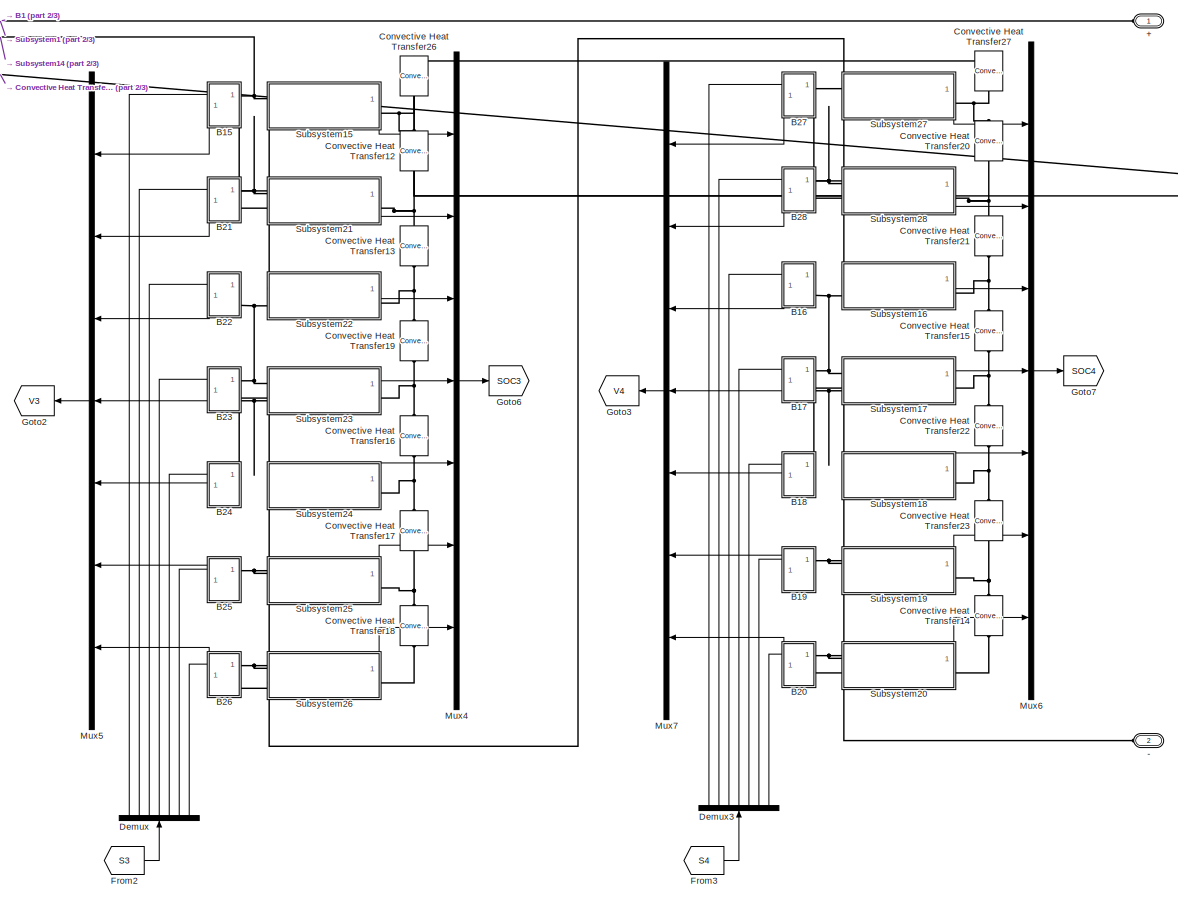
[diagram: root canvas - part 1/3, right side, full height]
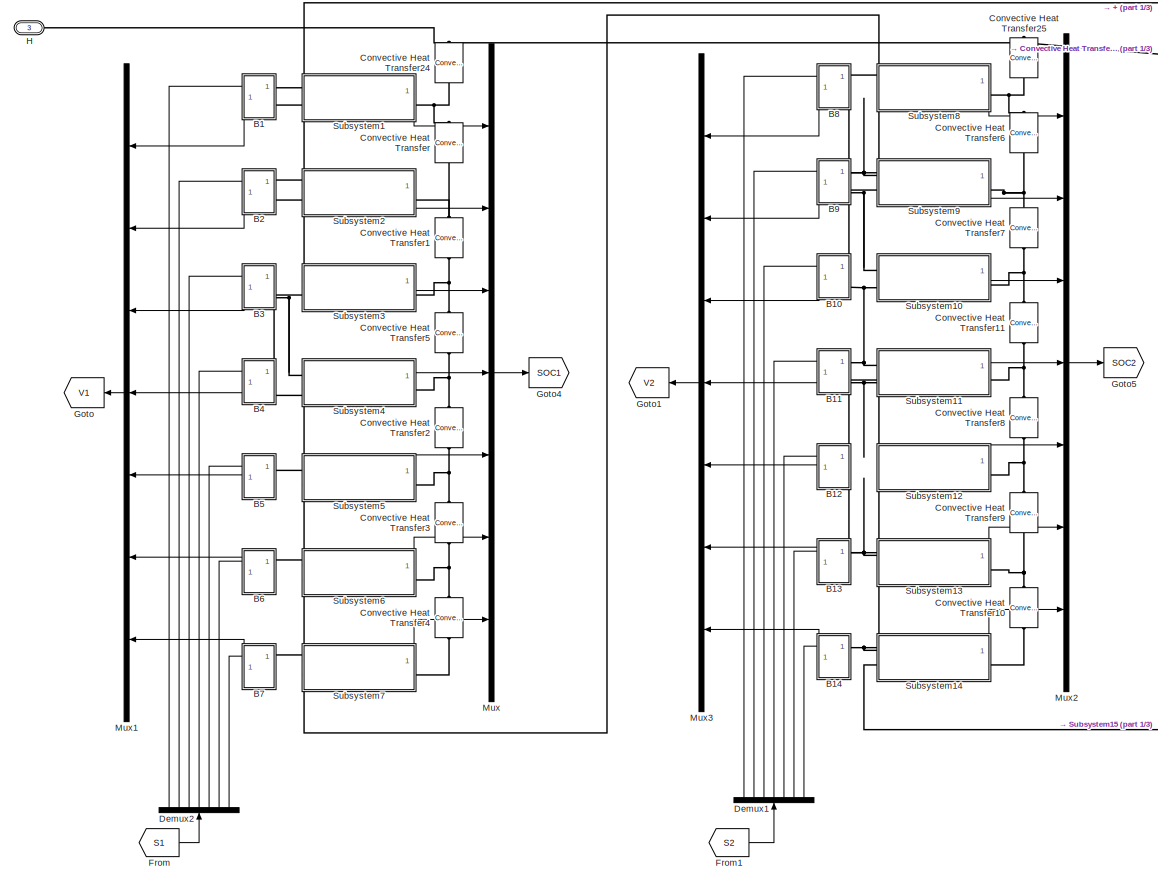
[diagram: root canvas - part 2/3, left side, full height]
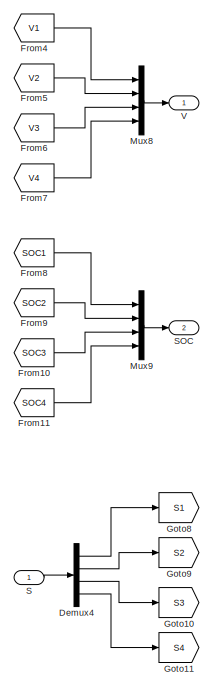
[diagram: root canvas - part 3/3, left side, full height]
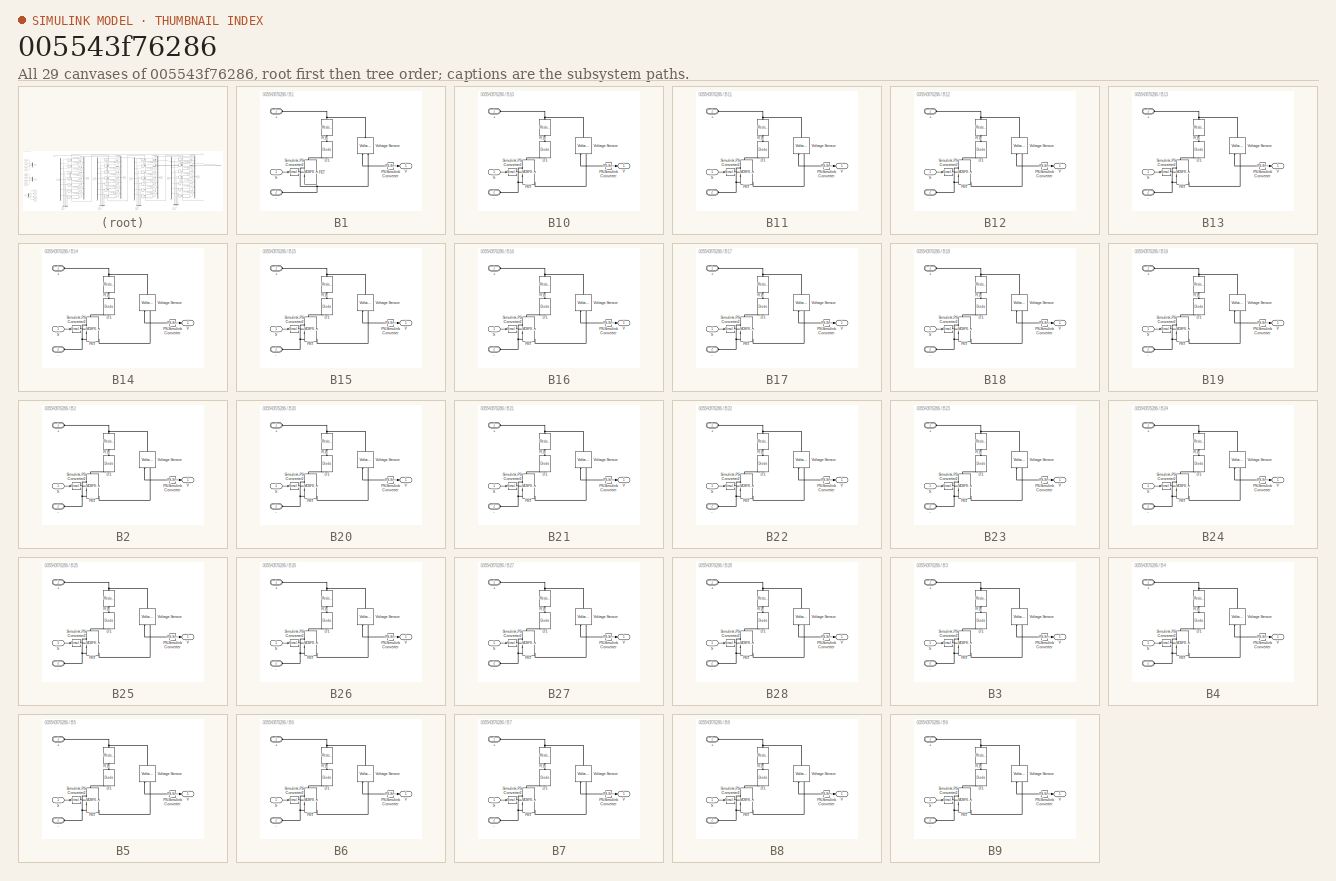
[diagram: thumbnail index - all 29 canvases of the model, root first then tree order]
MODEL slx_005543f76286
KIND model
CONFIG AbsTol = auto
CONFIG EnableMultiTasking = off
CONFIG FixedStep = auto
CONFIG MaxStep = auto
CONFIG MinStep = auto
CONFIG RelTol = 1e-3
CONFIG SampleTimeConstraint = Unconstrained
CONFIG SolverName = VariableStepAuto
CONFIG StartTime = 0.0
CONFIG StopTime = 10.0
BLOCK [PMIOPort] +
  NameLocation = top
  Side = Left
BLOCK [PMIOPort] -
  Port = 2
  Side = Left
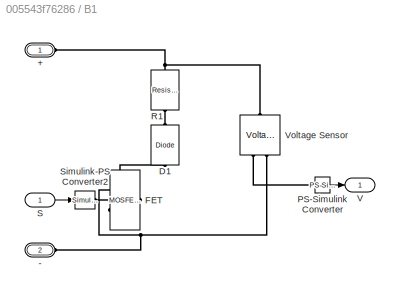
BLOCK [SubSystem] B1
  NameLocation = top
  PortSchema = {"entries":[{"content":{"sides":[{"content":{"connectorIds":["LConn1","LConn2"]},"type":"ConnectorPlacement.EquallySpacedRectSide","uuid":"6aa41268-c32d-468c-ba9e-aff6bdf17e7e"},{"content":{"connectorIds":["In1","Out1"],"side":"RIGHT"},"type":"ConnectorPlacement.EquallySpacedRectSide","uuid":"d7c9c6c8-e8a1-4cfb-a03a-d1be98baa325"},{"content":{"connectorIds":[],"side":"TOP"},"type":"ConnectorPlacem...<+402ch>  <repeated x28 — deduplicated; at blocks: B1, B10, B11, B12, B13, B14, B15, B16, B17, B18, B19, B2, B20, B21, B22, B23, +12 more>
  Ports = [1, 1, 0, 0, 0, 2]
  RequestExecContextInheritance = off
BLOCK [PMIOPort] B1/+
  Side = Left
BLOCK [PMIOPort] B1/-
  Port = 2
  Side = Left
BLOCK [Reference] B1/D1  REF=fl_lib/Electrical/Electrical Elements/Diode
  NameLocation = left
  Ports = [0, 0, 0, 0, 0, 1, 1]
  SourceBlock = fl_lib/Electrical/Electrical Elements/Diode
  SourceProductBaseCode = SS
  SourceType = Diode
BLOCK [Reference] B1/FET  REF=ee_lib/Semiconductors &
Converters/MOSFET
(Ideal,
Switching)
  Ports = [0, 0, 0, 0, 0, 1, 2]
  SourceBlock = ee_lib/Semiconductors &\nConverters/MOSFET\n(Ideal,\nSwitching)
  SourceProductBaseCode = PS
  SourceType = MOSFET\n(Ideal,\nSwitching)
BLOCK [Reference] B1/PS-Simulink Converter  REF=nesl_utility/PS-Simulink
Converter
  Ports = [0, 1, 0, 0, 0, 1]
  SourceBlock = nesl_utility/PS-Simulink\nConverter
  SourceProductBaseCode = SS
  SourceType = PS-Simulink\nConverter
BLOCK [Reference] B1/R1  REF=fl_lib/Electrical/Electrical Elements/Resistor
  NameLocation = left
  Ports = [0, 0, 0, 0, 0, 1, 1]
  SourceBlock = fl_lib/Electrical/Electrical Elements/Resistor
  SourceProductBaseCode = SS
  SourceType = Resistor
BLOCK [Inport] B1/S
BLOCK [Reference] B1/Simulink-PS Converter2  REF=nesl_utility/Simulink-PS
Converter
  NameLocation = top
  Ports = [1, 0, 0, 0, 0, 0, 1]
  SourceBlock = nesl_utility/Simulink-PS\nConverter
  SourceProductBaseCode = SS
  SourceType = Simulink-PS\nConverter
BLOCK [Outport] B1/V
BLOCK [Reference] B1/Voltage Sensor  REF=fl_lib/Electrical/Electrical Sensors/Voltage Sensor
  NameLocation = right
  Ports = [0, 0, 0, 0, 0, 1, 2]
  SourceBlock = fl_lib/Electrical/Electrical Sensors/Voltage Sensor
  SourceProductBaseCode = SS
  SourceType = Voltage Sensor
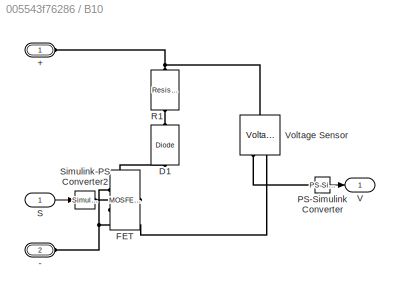
BLOCK [SubSystem] B10
  NameLocation = top
  Ports = [1, 1, 0, 0, 0, 2]
  RequestExecContextInheritance = off
BLOCK [PMIOPort] B10/+
  Side = Left
BLOCK [PMIOPort] B10/-
  Port = 2
  Side = Left
BLOCK [Reference] B10/D1  REF=fl_lib/Electrical/Electrical Elements/Diode
  NameLocation = left
  Ports = [0, 0, 0, 0, 0, 1, 1]
  SourceBlock = fl_lib/Electrical/Electrical Elements/Diode
  SourceProductBaseCode = SS
  SourceType = Diode
BLOCK [Reference] B10/FET  REF=ee_lib/Semiconductors &
Converters/MOSFET
(Ideal,
Switching)
  Ports = [0, 0, 0, 0, 0, 1, 2]
  SourceBlock = ee_lib/Semiconductors &\nConverters/MOSFET\n(Ideal,\nSwitching)
  SourceProductBaseCode = PS
  SourceType = MOSFET\n(Ideal,\nSwitching)
BLOCK [Reference] B10/PS-Simulink Converter  REF=nesl_utility/PS-Simulink
Converter
  Ports = [0, 1, 0, 0, 0, 1]
  SourceBlock = nesl_utility/PS-Simulink\nConverter
  SourceProductBaseCode = SS
  SourceType = PS-Simulink\nConverter
BLOCK [Reference] B10/R1  REF=fl_lib/Electrical/Electrical Elements/Resistor
  NameLocation = left
  Ports = [0, 0, 0, 0, 0, 1, 1]
  SourceBlock = fl_lib/Electrical/Electrical Elements/Resistor
  SourceProductBaseCode = SS
  SourceType = Resistor
BLOCK [Inport] B10/S
BLOCK [Reference] B10/Simulink-PS Converter2  REF=nesl_utility/Simulink-PS
Converter
  NameLocation = top
  Ports = [1, 0, 0, 0, 0, 0, 1]
  SourceBlock = nesl_utility/Simulink-PS\nConverter
  SourceProductBaseCode = SS
  SourceType = Simulink-PS\nConverter
BLOCK [Outport] B10/V
BLOCK [Reference] B10/Voltage Sensor  REF=fl_lib/Electrical/Electrical Sensors/Voltage Sensor
  NameLocation = right
  Ports = [0, 0, 0, 0, 0, 1, 2]
  SourceBlock = fl_lib/Electrical/Electrical Sensors/Voltage Sensor
  SourceProductBaseCode = SS
  SourceType = Voltage Sensor
BLOCK [SubSystem] B11
  NameLocation = top
  Ports = [1, 1, 0, 0, 0, 2]
  RequestExecContextInheritance = off
BLOCK [PMIOPort] B11/+
  Side = Left
BLOCK [PMIOPort] B11/-
  Port = 2
  Side = Left
BLOCK [Reference] B11/D1  REF=fl_lib/Electrical/Electrical Elements/Diode
  NameLocation = left
  Ports = [0, 0, 0, 0, 0, 1, 1]
  SourceBlock = fl_lib/Electrical/Electrical Elements/Diode
  SourceProductBaseCode = SS
  SourceType = Diode
BLOCK [Reference] B11/FET  REF=ee_lib/Semiconductors &
Converters/MOSFET
(Ideal,
Switching)
  Ports = [0, 0, 0, 0, 0, 1, 2]
  SourceBlock = ee_lib/Semiconductors &\nConverters/MOSFET\n(Ideal,\nSwitching)
  SourceProductBaseCode = PS
  SourceType = MOSFET\n(Ideal,\nSwitching)
BLOCK [Reference] B11/PS-Simulink Converter  REF=nesl_utility/PS-Simulink
Converter
  Ports = [0, 1, 0, 0, 0, 1]
  SourceBlock = nesl_utility/PS-Simulink\nConverter
  SourceProductBaseCode = SS
  SourceType = PS-Simulink\nConverter
BLOCK [Reference] B11/R1  REF=fl_lib/Electrical/Electrical Elements/Resistor
  NameLocation = left
  Ports = [0, 0, 0, 0, 0, 1, 1]
  SourceBlock = fl_lib/Electrical/Electrical Elements/Resistor
  SourceProductBaseCode = SS
  SourceType = Resistor
BLOCK [Inport] B11/S
BLOCK [Reference] B11/Simulink-PS Converter2  REF=nesl_utility/Simulink-PS
Converter
  NameLocation = top
  Ports = [1, 0, 0, 0, 0, 0, 1]
  SourceBlock = nesl_utility/Simulink-PS\nConverter
  SourceProductBaseCode = SS
  SourceType = Simulink-PS\nConverter
BLOCK [Outport] B11/V
BLOCK [Reference] B11/Voltage Sensor  REF=fl_lib/Electrical/Electrical Sensors/Voltage Sensor
  NameLocation = right
  Ports = [0, 0, 0, 0, 0, 1, 2]
  SourceBlock = fl_lib/Electrical/Electrical Sensors/Voltage Sensor
  SourceProductBaseCode = SS
  SourceType = Voltage Sensor
BLOCK [SubSystem] B12
  NameLocation = top
  Ports = [1, 1, 0, 0, 0, 2]
  RequestExecContextInheritance = off
BLOCK [PMIOPort] B12/+
  Side = Left
BLOCK [PMIOPort] B12/-
  Port = 2
  Side = Left
BLOCK [Reference] B12/D1  REF=fl_lib/Electrical/Electrical Elements/Diode
  NameLocation = left
  Ports = [0, 0, 0, 0, 0, 1, 1]
  SourceBlock = fl_lib/Electrical/Electrical Elements/Diode
  SourceProductBaseCode = SS
  SourceType = Diode
BLOCK [Reference] B12/FET  REF=ee_lib/Semiconductors &
Converters/MOSFET
(Ideal,
Switching)
  Ports = [0, 0, 0, 0, 0, 1, 2]
  SourceBlock = ee_lib/Semiconductors &\nConverters/MOSFET\n(Ideal,\nSwitching)
  SourceProductBaseCode = PS
  SourceType = MOSFET\n(Ideal,\nSwitching)
BLOCK [Reference] B12/PS-Simulink Converter  REF=nesl_utility/PS-Simulink
Converter
  Ports = [0, 1, 0, 0, 0, 1]
  SourceBlock = nesl_utility/PS-Simulink\nConverter
  SourceProductBaseCode = SS
  SourceType = PS-Simulink\nConverter
BLOCK [Reference] B12/R1  REF=fl_lib/Electrical/Electrical Elements/Resistor
  NameLocation = left
  Ports = [0, 0, 0, 0, 0, 1, 1]
  SourceBlock = fl_lib/Electrical/Electrical Elements/Resistor
  SourceProductBaseCode = SS
  SourceType = Resistor
BLOCK [Inport] B12/S
BLOCK [Reference] B12/Simulink-PS Converter2  REF=nesl_utility/Simulink-PS
Converter
  NameLocation = top
  Ports = [1, 0, 0, 0, 0, 0, 1]
  SourceBlock = nesl_utility/Simulink-PS\nConverter
  SourceProductBaseCode = SS
  SourceType = Simulink-PS\nConverter
BLOCK [Outport] B12/V
BLOCK [Reference] B12/Voltage Sensor  REF=fl_lib/Electrical/Electrical Sensors/Voltage Sensor
  NameLocation = right
  Ports = [0, 0, 0, 0, 0, 1, 2]
  SourceBlock = fl_lib/Electrical/Electrical Sensors/Voltage Sensor
  SourceProductBaseCode = SS
  SourceType = Voltage Sensor
BLOCK [SubSystem] B13
  NameLocation = top
  Ports = [1, 1, 0, 0, 0, 2]
  RequestExecContextInheritance = off
BLOCK [PMIOPort] B13/+
  Side = Left
BLOCK [PMIOPort] B13/-
  Port = 2
  Side = Left
BLOCK [Reference] B13/D1  REF=fl_lib/Electrical/Electrical Elements/Diode
  NameLocation = left
  Ports = [0, 0, 0, 0, 0, 1, 1]
  SourceBlock = fl_lib/Electrical/Electrical Elements/Diode
  SourceProductBaseCode = SS
  SourceType = Diode
BLOCK [Reference] B13/FET  REF=ee_lib/Semiconductors &
Converters/MOSFET
(Ideal,
Switching)
  Ports = [0, 0, 0, 0, 0, 1, 2]
  SourceBlock = ee_lib/Semiconductors &\nConverters/MOSFET\n(Ideal,\nSwitching)
  SourceProductBaseCode = PS
  SourceType = MOSFET\n(Ideal,\nSwitching)
BLOCK [Reference] B13/PS-Simulink Converter  REF=nesl_utility/PS-Simulink
Converter
  Ports = [0, 1, 0, 0, 0, 1]
  SourceBlock = nesl_utility/PS-Simulink\nConverter
  SourceProductBaseCode = SS
  SourceType = PS-Simulink\nConverter
BLOCK [Reference] B13/R1  REF=fl_lib/Electrical/Electrical Elements/Resistor
  NameLocation = left
  Ports = [0, 0, 0, 0, 0, 1, 1]
  SourceBlock = fl_lib/Electrical/Electrical Elements/Resistor
  SourceProductBaseCode = SS
  SourceType = Resistor
BLOCK [Inport] B13/S
BLOCK [Reference] B13/Simulink-PS Converter2  REF=nesl_utility/Simulink-PS
Converter
  NameLocation = top
  Ports = [1, 0, 0, 0, 0, 0, 1]
  SourceBlock = nesl_utility/Simulink-PS\nConverter
  SourceProductBaseCode = SS
  SourceType = Simulink-PS\nConverter
BLOCK [Outport] B13/V
BLOCK [Reference] B13/Voltage Sensor  REF=fl_lib/Electrical/Electrical Sensors/Voltage Sensor
  NameLocation = right
  Ports = [0, 0, 0, 0, 0, 1, 2]
  SourceBlock = fl_lib/Electrical/Electrical Sensors/Voltage Sensor
  SourceProductBaseCode = SS
  SourceType = Voltage Sensor
BLOCK [SubSystem] B14
  NameLocation = top
  Ports = [1, 1, 0, 0, 0, 2]
  RequestExecContextInheritance = off
BLOCK [PMIOPort] B14/+
  Side = Left
BLOCK [PMIOPort] B14/-
  Port = 2
  Side = Left
BLOCK [Reference] B14/D1  REF=fl_lib/Electrical/Electrical Elements/Diode
  NameLocation = left
  Ports = [0, 0, 0, 0, 0, 1, 1]
  SourceBlock = fl_lib/Electrical/Electrical Elements/Diode
  SourceProductBaseCode = SS
  SourceType = Diode
BLOCK [Reference] B14/FET  REF=ee_lib/Semiconductors &
Converters/MOSFET
(Ideal,
Switching)
  Ports = [0, 0, 0, 0, 0, 1, 2]
  SourceBlock = ee_lib/Semiconductors &\nConverters/MOSFET\n(Ideal,\nSwitching)
  SourceProductBaseCode = PS
  SourceType = MOSFET\n(Ideal,\nSwitching)
BLOCK [Reference] B14/PS-Simulink Converter  REF=nesl_utility/PS-Simulink
Converter
  Ports = [0, 1, 0, 0, 0, 1]
  SourceBlock = nesl_utility/PS-Simulink\nConverter
  SourceProductBaseCode = SS
  SourceType = PS-Simulink\nConverter
BLOCK [Reference] B14/R1  REF=fl_lib/Electrical/Electrical Elements/Resistor
  NameLocation = left
  Ports = [0, 0, 0, 0, 0, 1, 1]
  SourceBlock = fl_lib/Electrical/Electrical Elements/Resistor
  SourceProductBaseCode = SS
  SourceType = Resistor
BLOCK [Inport] B14/S
BLOCK [Reference] B14/Simulink-PS Converter2  REF=nesl_utility/Simulink-PS
Converter
  NameLocation = top
  Ports = [1, 0, 0, 0, 0, 0, 1]
  SourceBlock = nesl_utility/Simulink-PS\nConverter
  SourceProductBaseCode = SS
  SourceType = Simulink-PS\nConverter
BLOCK [Outport] B14/V
BLOCK [Reference] B14/Voltage Sensor  REF=fl_lib/Electrical/Electrical Sensors/Voltage Sensor
  NameLocation = right
  Ports = [0, 0, 0, 0, 0, 1, 2]
  SourceBlock = fl_lib/Electrical/Electrical Sensors/Voltage Sensor
  SourceProductBaseCode = SS
  SourceType = Voltage Sensor
BLOCK [SubSystem] B15
  NameLocation = top
  Ports = [1, 1, 0, 0, 0, 2]
  RequestExecContextInheritance = off
BLOCK [PMIOPort] B15/+
  Side = Left
BLOCK [PMIOPort] B15/-
  Port = 2
  Side = Left
BLOCK [Reference] B15/D1  REF=fl_lib/Electrical/Electrical Elements/Diode
  NameLocation = left
  Ports = [0, 0, 0, 0, 0, 1, 1]
  SourceBlock = fl_lib/Electrical/Electrical Elements/Diode
  SourceProductBaseCode = SS
  SourceType = Diode
BLOCK [Reference] B15/FET  REF=ee_lib/Semiconductors &
Converters/MOSFET
(Ideal,
Switching)
  Ports = [0, 0, 0, 0, 0, 1, 2]
  SourceBlock = ee_lib/Semiconductors &\nConverters/MOSFET\n(Ideal,\nSwitching)
  SourceProductBaseCode = PS
  SourceType = MOSFET\n(Ideal,\nSwitching)
BLOCK [Reference] B15/PS-Simulink Converter  REF=nesl_utility/PS-Simulink
Converter
  Ports = [0, 1, 0, 0, 0, 1]
  SourceBlock = nesl_utility/PS-Simulink\nConverter
  SourceProductBaseCode = SS
  SourceType = PS-Simulink\nConverter
BLOCK [Reference] B15/R1  REF=fl_lib/Electrical/Electrical Elements/Resistor
  NameLocation = left
  Ports = [0, 0, 0, 0, 0, 1, 1]
  SourceBlock = fl_lib/Electrical/Electrical Elements/Resistor
  SourceProductBaseCode = SS
  SourceType = Resistor
BLOCK [Inport] B15/S
BLOCK [Reference] B15/Simulink-PS Converter2  REF=nesl_utility/Simulink-PS
Converter
  NameLocation = top
  Ports = [1, 0, 0, 0, 0, 0, 1]
  SourceBlock = nesl_utility/Simulink-PS\nConverter
  SourceProductBaseCode = SS
  SourceType = Simulink-PS\nConverter
BLOCK [Outport] B15/V
BLOCK [Reference] B15/Voltage Sensor  REF=fl_lib/Electrical/Electrical Sensors/Voltage Sensor
  NameLocation = right
  Ports = [0, 0, 0, 0, 0, 1, 2]
  SourceBlock = fl_lib/Electrical/Electrical Sensors/Voltage Sensor
  SourceProductBaseCode = SS
  SourceType = Voltage Sensor
BLOCK [SubSystem] B16
  NameLocation = top
  Ports = [1, 1, 0, 0, 0, 2]
  RequestExecContextInheritance = off
BLOCK [PMIOPort] B16/+
  Side = Left
BLOCK [PMIOPort] B16/-
  Port = 2
  Side = Left
BLOCK [Reference] B16/D1  REF=fl_lib/Electrical/Electrical Elements/Diode
  NameLocation = left
  Ports = [0, 0, 0, 0, 0, 1, 1]
  SourceBlock = fl_lib/Electrical/Electrical Elements/Diode
  SourceProductBaseCode = SS
  SourceType = Diode
BLOCK [Reference] B16/FET  REF=ee_lib/Semiconductors &
Converters/MOSFET
(Ideal,
Switching)
  Ports = [0, 0, 0, 0, 0, 1, 2]
  SourceBlock = ee_lib/Semiconductors &\nConverters/MOSFET\n(Ideal,\nSwitching)
  SourceProductBaseCode = PS
  SourceType = MOSFET\n(Ideal,\nSwitching)
BLOCK [Reference] B16/PS-Simulink Converter  REF=nesl_utility/PS-Simulink
Converter
  Ports = [0, 1, 0, 0, 0, 1]
  SourceBlock = nesl_utility/PS-Simulink\nConverter
  SourceProductBaseCode = SS
  SourceType = PS-Simulink\nConverter
BLOCK [Reference] B16/R1  REF=fl_lib/Electrical/Electrical Elements/Resistor
  NameLocation = left
  Ports = [0, 0, 0, 0, 0, 1, 1]
  SourceBlock = fl_lib/Electrical/Electrical Elements/Resistor
  SourceProductBaseCode = SS
  SourceType = Resistor
BLOCK [Inport] B16/S
BLOCK [Reference] B16/Simulink-PS Converter2  REF=nesl_utility/Simulink-PS
Converter
  NameLocation = top
  Ports = [1, 0, 0, 0, 0, 0, 1]
  SourceBlock = nesl_utility/Simulink-PS\nConverter
  SourceProductBaseCode = SS
  SourceType = Simulink-PS\nConverter
BLOCK [Outport] B16/V
BLOCK [Reference] B16/Voltage Sensor  REF=fl_lib/Electrical/Electrical Sensors/Voltage Sensor
  NameLocation = right
  Ports = [0, 0, 0, 0, 0, 1, 2]
  SourceBlock = fl_lib/Electrical/Electrical Sensors/Voltage Sensor
  SourceProductBaseCode = SS
  SourceType = Voltage Sensor
BLOCK [SubSystem] B17
  NameLocation = top
  Ports = [1, 1, 0, 0, 0, 2]
  RequestExecContextInheritance = off
BLOCK [PMIOPort] B17/+
  Side = Left
BLOCK [PMIOPort] B17/-
  Port = 2
  Side = Left
BLOCK [Reference] B17/D1  REF=fl_lib/Electrical/Electrical Elements/Diode
  NameLocation = left
  Ports = [0, 0, 0, 0, 0, 1, 1]
  SourceBlock = fl_lib/Electrical/Electrical Elements/Diode
  SourceProductBaseCode = SS
  SourceType = Diode
BLOCK [Reference] B17/FET  REF=ee_lib/Semiconductors &
Converters/MOSFET
(Ideal,
Switching)
  Ports = [0, 0, 0, 0, 0, 1, 2]
  SourceBlock = ee_lib/Semiconductors &\nConverters/MOSFET\n(Ideal,\nSwitching)
  SourceProductBaseCode = PS
  SourceType = MOSFET\n(Ideal,\nSwitching)
BLOCK [Reference] B17/PS-Simulink Converter  REF=nesl_utility/PS-Simulink
Converter
  Ports = [0, 1, 0, 0, 0, 1]
  SourceBlock = nesl_utility/PS-Simulink\nConverter
  SourceProductBaseCode = SS
  SourceType = PS-Simulink\nConverter
BLOCK [Reference] B17/R1  REF=fl_lib/Electrical/Electrical Elements/Resistor
  NameLocation = left
  Ports = [0, 0, 0, 0, 0, 1, 1]
  SourceBlock = fl_lib/Electrical/Electrical Elements/Resistor
  SourceProductBaseCode = SS
  SourceType = Resistor
BLOCK [Inport] B17/S
BLOCK [Reference] B17/Simulink-PS Converter2  REF=nesl_utility/Simulink-PS
Converter
  NameLocation = top
  Ports = [1, 0, 0, 0, 0, 0, 1]
  SourceBlock = nesl_utility/Simulink-PS\nConverter
  SourceProductBaseCode = SS
  SourceType = Simulink-PS\nConverter
BLOCK [Outport] B17/V
BLOCK [Reference] B17/Voltage Sensor  REF=fl_lib/Electrical/Electrical Sensors/Voltage Sensor
  NameLocation = right
  Ports = [0, 0, 0, 0, 0, 1, 2]
  SourceBlock = fl_lib/Electrical/Electrical Sensors/Voltage Sensor
  SourceProductBaseCode = SS
  SourceType = Voltage Sensor
BLOCK [SubSystem] B18
  NameLocation = top
  Ports = [1, 1, 0, 0, 0, 2]
  RequestExecContextInheritance = off
BLOCK [PMIOPort] B18/+
  Side = Left
BLOCK [PMIOPort] B18/-
  Port = 2
  Side = Left
BLOCK [Reference] B18/D1  REF=fl_lib/Electrical/Electrical Elements/Diode
  NameLocation = left
  Ports = [0, 0, 0, 0, 0, 1, 1]
  SourceBlock = fl_lib/Electrical/Electrical Elements/Diode
  SourceProductBaseCode = SS
  SourceType = Diode
BLOCK [Reference] B18/FET  REF=ee_lib/Semiconductors &
Converters/MOSFET
(Ideal,
Switching)
  Ports = [0, 0, 0, 0, 0, 1, 2]
  SourceBlock = ee_lib/Semiconductors &\nConverters/MOSFET\n(Ideal,\nSwitching)
  SourceProductBaseCode = PS
  SourceType = MOSFET\n(Ideal,\nSwitching)
BLOCK [Reference] B18/PS-Simulink Converter  REF=nesl_utility/PS-Simulink
Converter
  Ports = [0, 1, 0, 0, 0, 1]
  SourceBlock = nesl_utility/PS-Simulink\nConverter
  SourceProductBaseCode = SS
  SourceType = PS-Simulink\nConverter
BLOCK [Reference] B18/R1  REF=fl_lib/Electrical/Electrical Elements/Resistor
  NameLocation = left
  Ports = [0, 0, 0, 0, 0, 1, 1]
  SourceBlock = fl_lib/Electrical/Electrical Elements/Resistor
  SourceProductBaseCode = SS
  SourceType = Resistor
BLOCK [Inport] B18/S
BLOCK [Reference] B18/Simulink-PS Converter2  REF=nesl_utility/Simulink-PS
Converter
  NameLocation = top
  Ports = [1, 0, 0, 0, 0, 0, 1]
  SourceBlock = nesl_utility/Simulink-PS\nConverter
  SourceProductBaseCode = SS
  SourceType = Simulink-PS\nConverter
BLOCK [Outport] B18/V
BLOCK [Reference] B18/Voltage Sensor  REF=fl_lib/Electrical/Electrical Sensors/Voltage Sensor
  NameLocation = right
  Ports = [0, 0, 0, 0, 0, 1, 2]
  SourceBlock = fl_lib/Electrical/Electrical Sensors/Voltage Sensor
  SourceProductBaseCode = SS
  SourceType = Voltage Sensor
BLOCK [SubSystem] B19
  NameLocation = top
  Ports = [1, 1, 0, 0, 0, 2]
  RequestExecContextInheritance = off
BLOCK [PMIOPort] B19/+
  Side = Left
BLOCK [PMIOPort] B19/-
  Port = 2
  Side = Left
BLOCK [Reference] B19/D1  REF=fl_lib/Electrical/Electrical Elements/Diode
  NameLocation = left
  Ports = [0, 0, 0, 0, 0, 1, 1]
  SourceBlock = fl_lib/Electrical/Electrical Elements/Diode
  SourceProductBaseCode = SS
  SourceType = Diode
BLOCK [Reference] B19/FET  REF=ee_lib/Semiconductors &
Converters/MOSFET
(Ideal,
Switching)
  Ports = [0, 0, 0, 0, 0, 1, 2]
  SourceBlock = ee_lib/Semiconductors &\nConverters/MOSFET\n(Ideal,\nSwitching)
  SourceProductBaseCode = PS
  SourceType = MOSFET\n(Ideal,\nSwitching)
BLOCK [Reference] B19/PS-Simulink Converter  REF=nesl_utility/PS-Simulink
Converter
  Ports = [0, 1, 0, 0, 0, 1]
  SourceBlock = nesl_utility/PS-Simulink\nConverter
  SourceProductBaseCode = SS
  SourceType = PS-Simulink\nConverter
BLOCK [Reference] B19/R1  REF=fl_lib/Electrical/Electrical Elements/Resistor
  NameLocation = left
  Ports = [0, 0, 0, 0, 0, 1, 1]
  SourceBlock = fl_lib/Electrical/Electrical Elements/Resistor
  SourceProductBaseCode = SS
  SourceType = Resistor
BLOCK [Inport] B19/S
BLOCK [Reference] B19/Simulink-PS Converter2  REF=nesl_utility/Simulink-PS
Converter
  NameLocation = top
  Ports = [1, 0, 0, 0, 0, 0, 1]
  SourceBlock = nesl_utility/Simulink-PS\nConverter
  SourceProductBaseCode = SS
  SourceType = Simulink-PS\nConverter
BLOCK [Outport] B19/V
BLOCK [Reference] B19/Voltage Sensor  REF=fl_lib/Electrical/Electrical Sensors/Voltage Sensor
  NameLocation = right
  Ports = [0, 0, 0, 0, 0, 1, 2]
  SourceBlock = fl_lib/Electrical/Electrical Sensors/Voltage Sensor
  SourceProductBaseCode = SS
  SourceType = Voltage Sensor
BLOCK [SubSystem] B2
  NameLocation = top
  Ports = [1, 1, 0, 0, 0, 2]
  RequestExecContextInheritance = off
BLOCK [PMIOPort] B2/+
  Side = Left
BLOCK [PMIOPort] B2/-
  Port = 2
  Side = Left
BLOCK [Reference] B2/D1  REF=fl_lib/Electrical/Electrical Elements/Diode
  NameLocation = left
  Ports = [0, 0, 0, 0, 0, 1, 1]
  SourceBlock = fl_lib/Electrical/Electrical Elements/Diode
  SourceProductBaseCode = SS
  SourceType = Diode
BLOCK [Reference] B2/FET  REF=ee_lib/Semiconductors &
Converters/MOSFET
(Ideal,
Switching)
  Ports = [0, 0, 0, 0, 0, 1, 2]
  SourceBlock = ee_lib/Semiconductors &\nConverters/MOSFET\n(Ideal,\nSwitching)
  SourceProductBaseCode = PS
  SourceType = MOSFET\n(Ideal,\nSwitching)
BLOCK [Reference] B2/PS-Simulink Converter  REF=nesl_utility/PS-Simulink
Converter
  Ports = [0, 1, 0, 0, 0, 1]
  SourceBlock = nesl_utility/PS-Simulink\nConverter
  SourceProductBaseCode = SS
  SourceType = PS-Simulink\nConverter
BLOCK [Reference] B2/R1  REF=fl_lib/Electrical/Electrical Elements/Resistor
  NameLocation = left
  Ports = [0, 0, 0, 0, 0, 1, 1]
  SourceBlock = fl_lib/Electrical/Electrical Elements/Resistor
  SourceProductBaseCode = SS
  SourceType = Resistor
BLOCK [Inport] B2/S
BLOCK [Reference] B2/Simulink-PS Converter2  REF=nesl_utility/Simulink-PS
Converter
  NameLocation = top
  Ports = [1, 0, 0, 0, 0, 0, 1]
  SourceBlock = nesl_utility/Simulink-PS\nConverter
  SourceProductBaseCode = SS
  SourceType = Simulink-PS\nConverter
BLOCK [Outport] B2/V
BLOCK [Reference] B2/Voltage Sensor  REF=fl_lib/Electrical/Electrical Sensors/Voltage Sensor
  NameLocation = right
  Ports = [0, 0, 0, 0, 0, 1, 2]
  SourceBlock = fl_lib/Electrical/Electrical Sensors/Voltage Sensor
  SourceProductBaseCode = SS
  SourceType = Voltage Sensor
BLOCK [SubSystem] B20
  NameLocation = top
  Ports = [1, 1, 0, 0, 0, 2]
  RequestExecContextInheritance = off
BLOCK [PMIOPort] B20/+
  Side = Left
BLOCK [PMIOPort] B20/-
  Port = 2
  Side = Left
BLOCK [Reference] B20/D1  REF=fl_lib/Electrical/Electrical Elements/Diode
  NameLocation = left
  Ports = [0, 0, 0, 0, 0, 1, 1]
  SourceBlock = fl_lib/Electrical/Electrical Elements/Diode
  SourceProductBaseCode = SS
  SourceType = Diode
BLOCK [Reference] B20/FET  REF=ee_lib/Semiconductors &
Converters/MOSFET
(Ideal,
Switching)
  Ports = [0, 0, 0, 0, 0, 1, 2]
  SourceBlock = ee_lib/Semiconductors &\nConverters/MOSFET\n(Ideal,\nSwitching)
  SourceProductBaseCode = PS
  SourceType = MOSFET\n(Ideal,\nSwitching)
BLOCK [Reference] B20/PS-Simulink Converter  REF=nesl_utility/PS-Simulink
Converter
  Ports = [0, 1, 0, 0, 0, 1]
  SourceBlock = nesl_utility/PS-Simulink\nConverter
  SourceProductBaseCode = SS
  SourceType = PS-Simulink\nConverter
BLOCK [Reference] B20/R1  REF=fl_lib/Electrical/Electrical Elements/Resistor
  NameLocation = left
  Ports = [0, 0, 0, 0, 0, 1, 1]
  SourceBlock = fl_lib/Electrical/Electrical Elements/Resistor
  SourceProductBaseCode = SS
  SourceType = Resistor
BLOCK [Inport] B20/S
BLOCK [Reference] B20/Simulink-PS Converter2  REF=nesl_utility/Simulink-PS
Converter
  NameLocation = top
  Ports = [1, 0, 0, 0, 0, 0, 1]
  SourceBlock = nesl_utility/Simulink-PS\nConverter
  SourceProductBaseCode = SS
  SourceType = Simulink-PS\nConverter
BLOCK [Outport] B20/V
BLOCK [Reference] B20/Voltage Sensor  REF=fl_lib/Electrical/Electrical Sensors/Voltage Sensor
  NameLocation = right
  Ports = [0, 0, 0, 0, 0, 1, 2]
  SourceBlock = fl_lib/Electrical/Electrical Sensors/Voltage Sensor
  SourceProductBaseCode = SS
  SourceType = Voltage Sensor
BLOCK [SubSystem] B21
  NameLocation = top
  Ports = [1, 1, 0, 0, 0, 2]
  RequestExecContextInheritance = off
BLOCK [PMIOPort] B21/+
  Side = Left
BLOCK [PMIOPort] B21/-
  Port = 2
  Side = Left
BLOCK [Reference] B21/D1  REF=fl_lib/Electrical/Electrical Elements/Diode
  NameLocation = left
  Ports = [0, 0, 0, 0, 0, 1, 1]
  SourceBlock = fl_lib/Electrical/Electrical Elements/Diode
  SourceProductBaseCode = SS
  SourceType = Diode
BLOCK [Reference] B21/FET  REF=ee_lib/Semiconductors &
Converters/MOSFET
(Ideal,
Switching)
  Ports = [0, 0, 0, 0, 0, 1, 2]
  SourceBlock = ee_lib/Semiconductors &\nConverters/MOSFET\n(Ideal,\nSwitching)
  SourceProductBaseCode = PS
  SourceType = MOSFET\n(Ideal,\nSwitching)
BLOCK [Reference] B21/PS-Simulink Converter  REF=nesl_utility/PS-Simulink
Converter
  Ports = [0, 1, 0, 0, 0, 1]
  SourceBlock = nesl_utility/PS-Simulink\nConverter
  SourceProductBaseCode = SS
  SourceType = PS-Simulink\nConverter
BLOCK [Reference] B21/R1  REF=fl_lib/Electrical/Electrical Elements/Resistor
  NameLocation = left
  Ports = [0, 0, 0, 0, 0, 1, 1]
  SourceBlock = fl_lib/Electrical/Electrical Elements/Resistor
  SourceProductBaseCode = SS
  SourceType = Resistor
BLOCK [Inport] B21/S
BLOCK [Reference] B21/Simulink-PS Converter2  REF=nesl_utility/Simulink-PS
Converter
  NameLocation = top
  Ports = [1, 0, 0, 0, 0, 0, 1]
  SourceBlock = nesl_utility/Simulink-PS\nConverter
  SourceProductBaseCode = SS
  SourceType = Simulink-PS\nConverter
BLOCK [Outport] B21/V
BLOCK [Reference] B21/Voltage Sensor  REF=fl_lib/Electrical/Electrical Sensors/Voltage Sensor
  NameLocation = right
  Ports = [0, 0, 0, 0, 0, 1, 2]
  SourceBlock = fl_lib/Electrical/Electrical Sensors/Voltage Sensor
  SourceProductBaseCode = SS
  SourceType = Voltage Sensor
BLOCK [SubSystem] B22
  NameLocation = top
  Ports = [1, 1, 0, 0, 0, 2]
  RequestExecContextInheritance = off
BLOCK [PMIOPort] B22/+
  Side = Left
BLOCK [PMIOPort] B22/-
  Port = 2
  Side = Left
BLOCK [Reference] B22/D1  REF=fl_lib/Electrical/Electrical Elements/Diode
  NameLocation = left
  Ports = [0, 0, 0, 0, 0, 1, 1]
  SourceBlock = fl_lib/Electrical/Electrical Elements/Diode
  SourceProductBaseCode = SS
  SourceType = Diode
BLOCK [Reference] B22/FET  REF=ee_lib/Semiconductors &
Converters/MOSFET
(Ideal,
Switching)
  Ports = [0, 0, 0, 0, 0, 1, 2]
  SourceBlock = ee_lib/Semiconductors &\nConverters/MOSFET\n(Ideal,\nSwitching)
  SourceProductBaseCode = PS
  SourceType = MOSFET\n(Ideal,\nSwitching)
BLOCK [Reference] B22/PS-Simulink Converter  REF=nesl_utility/PS-Simulink
Converter
  Ports = [0, 1, 0, 0, 0, 1]
  SourceBlock = nesl_utility/PS-Simulink\nConverter
  SourceProductBaseCode = SS
  SourceType = PS-Simulink\nConverter
BLOCK [Reference] B22/R1  REF=fl_lib/Electrical/Electrical Elements/Resistor
  NameLocation = left
  Ports = [0, 0, 0, 0, 0, 1, 1]
  SourceBlock = fl_lib/Electrical/Electrical Elements/Resistor
  SourceProductBaseCode = SS
  SourceType = Resistor
BLOCK [Inport] B22/S
BLOCK [Reference] B22/Simulink-PS Converter2  REF=nesl_utility/Simulink-PS
Converter
  NameLocation = top
  Ports = [1, 0, 0, 0, 0, 0, 1]
  SourceBlock = nesl_utility/Simulink-PS\nConverter
  SourceProductBaseCode = SS
  SourceType = Simulink-PS\nConverter
BLOCK [Outport] B22/V
BLOCK [Reference] B22/Voltage Sensor  REF=fl_lib/Electrical/Electrical Sensors/Voltage Sensor
  NameLocation = right
  Ports = [0, 0, 0, 0, 0, 1, 2]
  SourceBlock = fl_lib/Electrical/Electrical Sensors/Voltage Sensor
  SourceProductBaseCode = SS
  SourceType = Voltage Sensor
BLOCK [SubSystem] B23
  NameLocation = top
  Ports = [1, 1, 0, 0, 0, 2]
  RequestExecContextInheritance = off
BLOCK [PMIOPort] B23/+
  Side = Left
BLOCK [PMIOPort] B23/-
  Port = 2
  Side = Left
BLOCK [Reference] B23/D1  REF=fl_lib/Electrical/Electrical Elements/Diode
  NameLocation = left
  Ports = [0, 0, 0, 0, 0, 1, 1]
  SourceBlock = fl_lib/Electrical/Electrical Elements/Diode
  SourceProductBaseCode = SS
  SourceType = Diode
BLOCK [Reference] B23/FET  REF=ee_lib/Semiconductors &
Converters/MOSFET
(Ideal,
Switching)
  Ports = [0, 0, 0, 0, 0, 1, 2]
  SourceBlock = ee_lib/Semiconductors &\nConverters/MOSFET\n(Ideal,\nSwitching)
  SourceProductBaseCode = PS
  SourceType = MOSFET\n(Ideal,\nSwitching)
BLOCK [Reference] B23/PS-Simulink Converter  REF=nesl_utility/PS-Simulink
Converter
  Ports = [0, 1, 0, 0, 0, 1]
  SourceBlock = nesl_utility/PS-Simulink\nConverter
  SourceProductBaseCode = SS
  SourceType = PS-Simulink\nConverter
BLOCK [Reference] B23/R1  REF=fl_lib/Electrical/Electrical Elements/Resistor
  NameLocation = left
  Ports = [0, 0, 0, 0, 0, 1, 1]
  SourceBlock = fl_lib/Electrical/Electrical Elements/Resistor
  SourceProductBaseCode = SS
  SourceType = Resistor
BLOCK [Inport] B23/S
BLOCK [Reference] B23/Simulink-PS Converter2  REF=nesl_utility/Simulink-PS
Converter
  NameLocation = top
  Ports = [1, 0, 0, 0, 0, 0, 1]
  SourceBlock = nesl_utility/Simulink-PS\nConverter
  SourceProductBaseCode = SS
  SourceType = Simulink-PS\nConverter
BLOCK [Outport] B23/V
BLOCK [Reference] B23/Voltage Sensor  REF=fl_lib/Electrical/Electrical Sensors/Voltage Sensor
  NameLocation = right
  Ports = [0, 0, 0, 0, 0, 1, 2]
  SourceBlock = fl_lib/Electrical/Electrical Sensors/Voltage Sensor
  SourceProductBaseCode = SS
  SourceType = Voltage Sensor
BLOCK [SubSystem] B24
  NameLocation = top
  Ports = [1, 1, 0, 0, 0, 2]
  RequestExecContextInheritance = off
BLOCK [PMIOPort] B24/+
  Side = Left
BLOCK [PMIOPort] B24/-
  Port = 2
  Side = Left
BLOCK [Reference] B24/D1  REF=fl_lib/Electrical/Electrical Elements/Diode
  NameLocation = left
  Ports = [0, 0, 0, 0, 0, 1, 1]
  SourceBlock = fl_lib/Electrical/Electrical Elements/Diode
  SourceProductBaseCode = SS
  SourceType = Diode
BLOCK [Reference] B24/FET  REF=ee_lib/Semiconductors &
Converters/MOSFET
(Ideal,
Switching)
  Ports = [0, 0, 0, 0, 0, 1, 2]
  SourceBlock = ee_lib/Semiconductors &\nConverters/MOSFET\n(Ideal,\nSwitching)
  SourceProductBaseCode = PS
  SourceType = MOSFET\n(Ideal,\nSwitching)
BLOCK [Reference] B24/PS-Simulink Converter  REF=nesl_utility/PS-Simulink
Converter
  Ports = [0, 1, 0, 0, 0, 1]
  SourceBlock = nesl_utility/PS-Simulink\nConverter
  SourceProductBaseCode = SS
  SourceType = PS-Simulink\nConverter
BLOCK [Reference] B24/R1  REF=fl_lib/Electrical/Electrical Elements/Resistor
  NameLocation = left
  Ports = [0, 0, 0, 0, 0, 1, 1]
  SourceBlock = fl_lib/Electrical/Electrical Elements/Resistor
  SourceProductBaseCode = SS
  SourceType = Resistor
BLOCK [Inport] B24/S
BLOCK [Reference] B24/Simulink-PS Converter2  REF=nesl_utility/Simulink-PS
Converter
  NameLocation = top
  Ports = [1, 0, 0, 0, 0, 0, 1]
  SourceBlock = nesl_utility/Simulink-PS\nConverter
  SourceProductBaseCode = SS
  SourceType = Simulink-PS\nConverter
BLOCK [Outport] B24/V
BLOCK [Reference] B24/Voltage Sensor  REF=fl_lib/Electrical/Electrical Sensors/Voltage Sensor
  NameLocation = right
  Ports = [0, 0, 0, 0, 0, 1, 2]
  SourceBlock = fl_lib/Electrical/Electrical Sensors/Voltage Sensor
  SourceProductBaseCode = SS
  SourceType = Voltage Sensor
BLOCK [SubSystem] B25
  NameLocation = top
  Ports = [1, 1, 0, 0, 0, 2]
  RequestExecContextInheritance = off
BLOCK [PMIOPort] B25/+
  Side = Left
BLOCK [PMIOPort] B25/-
  Port = 2
  Side = Left
BLOCK [Reference] B25/D1  REF=fl_lib/Electrical/Electrical Elements/Diode
  NameLocation = left
  Ports = [0, 0, 0, 0, 0, 1, 1]
  SourceBlock = fl_lib/Electrical/Electrical Elements/Diode
  SourceProductBaseCode = SS
  SourceType = Diode
BLOCK [Reference] B25/FET  REF=ee_lib/Semiconductors &
Converters/MOSFET
(Ideal,
Switching)
  Ports = [0, 0, 0, 0, 0, 1, 2]
  SourceBlock = ee_lib/Semiconductors &\nConverters/MOSFET\n(Ideal,\nSwitching)
  SourceProductBaseCode = PS
  SourceType = MOSFET\n(Ideal,\nSwitching)
BLOCK [Reference] B25/PS-Simulink Converter  REF=nesl_utility/PS-Simulink
Converter
  Ports = [0, 1, 0, 0, 0, 1]
  SourceBlock = nesl_utility/PS-Simulink\nConverter
  SourceProductBaseCode = SS
  SourceType = PS-Simulink\nConverter
BLOCK [Reference] B25/R1  REF=fl_lib/Electrical/Electrical Elements/Resistor
  NameLocation = left
  Ports = [0, 0, 0, 0, 0, 1, 1]
  SourceBlock = fl_lib/Electrical/Electrical Elements/Resistor
  SourceProductBaseCode = SS
  SourceType = Resistor
BLOCK [Inport] B25/S
BLOCK [Reference] B25/Simulink-PS Converter2  REF=nesl_utility/Simulink-PS
Converter
  NameLocation = top
  Ports = [1, 0, 0, 0, 0, 0, 1]
  SourceBlock = nesl_utility/Simulink-PS\nConverter
  SourceProductBaseCode = SS
  SourceType = Simulink-PS\nConverter
BLOCK [Outport] B25/V
BLOCK [Reference] B25/Voltage Sensor  REF=fl_lib/Electrical/Electrical Sensors/Voltage Sensor
  NameLocation = right
  Ports = [0, 0, 0, 0, 0, 1, 2]
  SourceBlock = fl_lib/Electrical/Electrical Sensors/Voltage Sensor
  SourceProductBaseCode = SS
  SourceType = Voltage Sensor
BLOCK [SubSystem] B26
  NameLocation = top
  Ports = [1, 1, 0, 0, 0, 2]
  RequestExecContextInheritance = off
BLOCK [PMIOPort] B26/+
  Side = Left
BLOCK [PMIOPort] B26/-
  Port = 2
  Side = Left
BLOCK [Reference] B26/D1  REF=fl_lib/Electrical/Electrical Elements/Diode
  NameLocation = left
  Ports = [0, 0, 0, 0, 0, 1, 1]
  SourceBlock = fl_lib/Electrical/Electrical Elements/Diode
  SourceProductBaseCode = SS
  SourceType = Diode
BLOCK [Reference] B26/FET  REF=ee_lib/Semiconductors &
Converters/MOSFET
(Ideal,
Switching)
  Ports = [0, 0, 0, 0, 0, 1, 2]
  SourceBlock = ee_lib/Semiconductors &\nConverters/MOSFET\n(Ideal,\nSwitching)
  SourceProductBaseCode = PS
  SourceType = MOSFET\n(Ideal,\nSwitching)
BLOCK [Reference] B26/PS-Simulink Converter  REF=nesl_utility/PS-Simulink
Converter
  Ports = [0, 1, 0, 0, 0, 1]
  SourceBlock = nesl_utility/PS-Simulink\nConverter
  SourceProductBaseCode = SS
  SourceType = PS-Simulink\nConverter
BLOCK [Reference] B26/R1  REF=fl_lib/Electrical/Electrical Elements/Resistor
  NameLocation = left
  Ports = [0, 0, 0, 0, 0, 1, 1]
  SourceBlock = fl_lib/Electrical/Electrical Elements/Resistor
  SourceProductBaseCode = SS
  SourceType = Resistor
BLOCK [Inport] B26/S
BLOCK [Reference] B26/Simulink-PS Converter2  REF=nesl_utility/Simulink-PS
Converter
  NameLocation = top
  Ports = [1, 0, 0, 0, 0, 0, 1]
  SourceBlock = nesl_utility/Simulink-PS\nConverter
  SourceProductBaseCode = SS
  SourceType = Simulink-PS\nConverter
BLOCK [Outport] B26/V
BLOCK [Reference] B26/Voltage Sensor  REF=fl_lib/Electrical/Electrical Sensors/Voltage Sensor
  NameLocation = right
  Ports = [0, 0, 0, 0, 0, 1, 2]
  SourceBlock = fl_lib/Electrical/Electrical Sensors/Voltage Sensor
  SourceProductBaseCode = SS
  SourceType = Voltage Sensor
BLOCK [SubSystem] B27
  NameLocation = top
  Ports = [1, 1, 0, 0, 0, 2]
  RequestExecContextInheritance = off
BLOCK [PMIOPort] B27/+
  Side = Left
BLOCK [PMIOPort] B27/-
  Port = 2
  Side = Left
BLOCK [Reference] B27/D1  REF=fl_lib/Electrical/Electrical Elements/Diode
  NameLocation = left
  Ports = [0, 0, 0, 0, 0, 1, 1]
  SourceBlock = fl_lib/Electrical/Electrical Elements/Diode
  SourceProductBaseCode = SS
  SourceType = Diode
BLOCK [Reference] B27/FET  REF=ee_lib/Semiconductors &
Converters/MOSFET
(Ideal,
Switching)
  Ports = [0, 0, 0, 0, 0, 1, 2]
  SourceBlock = ee_lib/Semiconductors &\nConverters/MOSFET\n(Ideal,\nSwitching)
  SourceProductBaseCode = PS
  SourceType = MOSFET\n(Ideal,\nSwitching)
BLOCK [Reference] B27/PS-Simulink Converter  REF=nesl_utility/PS-Simulink
Converter
  Ports = [0, 1, 0, 0, 0, 1]
  SourceBlock = nesl_utility/PS-Simulink\nConverter
  SourceProductBaseCode = SS
  SourceType = PS-Simulink\nConverter
BLOCK [Reference] B27/R1  REF=fl_lib/Electrical/Electrical Elements/Resistor
  NameLocation = left
  Ports = [0, 0, 0, 0, 0, 1, 1]
  SourceBlock = fl_lib/Electrical/Electrical Elements/Resistor
  SourceProductBaseCode = SS
  SourceType = Resistor
BLOCK [Inport] B27/S
BLOCK [Reference] B27/Simulink-PS Converter2  REF=nesl_utility/Simulink-PS
Converter
  NameLocation = top
  Ports = [1, 0, 0, 0, 0, 0, 1]
  SourceBlock = nesl_utility/Simulink-PS\nConverter
  SourceProductBaseCode = SS
  SourceType = Simulink-PS\nConverter
BLOCK [Outport] B27/V
BLOCK [Reference] B27/Voltage Sensor  REF=fl_lib/Electrical/Electrical Sensors/Voltage Sensor
  NameLocation = right
  Ports = [0, 0, 0, 0, 0, 1, 2]
  SourceBlock = fl_lib/Electrical/Electrical Sensors/Voltage Sensor
  SourceProductBaseCode = SS
  SourceType = Voltage Sensor
BLOCK [SubSystem] B28
  NameLocation = top
  Ports = [1, 1, 0, 0, 0, 2]
  RequestExecContextInheritance = off
BLOCK [PMIOPort] B28/+
  Side = Left
BLOCK [PMIOPort] B28/-
  Port = 2
  Side = Left
BLOCK [Reference] B28/D1  REF=fl_lib/Electrical/Electrical Elements/Diode
  NameLocation = left
  Ports = [0, 0, 0, 0, 0, 1, 1]
  SourceBlock = fl_lib/Electrical/Electrical Elements/Diode
  SourceProductBaseCode = SS
  SourceType = Diode
BLOCK [Reference] B28/FET  REF=ee_lib/Semiconductors &
Converters/MOSFET
(Ideal,
Switching)
  Ports = [0, 0, 0, 0, 0, 1, 2]
  SourceBlock = ee_lib/Semiconductors &\nConverters/MOSFET\n(Ideal,\nSwitching)
  SourceProductBaseCode = PS
  SourceType = MOSFET\n(Ideal,\nSwitching)
BLOCK [Reference] B28/PS-Simulink Converter  REF=nesl_utility/PS-Simulink
Converter
  Ports = [0, 1, 0, 0, 0, 1]
  SourceBlock = nesl_utility/PS-Simulink\nConverter
  SourceProductBaseCode = SS
  SourceType = PS-Simulink\nConverter
BLOCK [Reference] B28/R1  REF=fl_lib/Electrical/Electrical Elements/Resistor
  NameLocation = left
  Ports = [0, 0, 0, 0, 0, 1, 1]
  SourceBlock = fl_lib/Electrical/Electrical Elements/Resistor
  SourceProductBaseCode = SS
  SourceType = Resistor
BLOCK [Inport] B28/S
BLOCK [Reference] B28/Simulink-PS Converter2  REF=nesl_utility/Simulink-PS
Converter
  NameLocation = top
  Ports = [1, 0, 0, 0, 0, 0, 1]
  SourceBlock = nesl_utility/Simulink-PS\nConverter
  SourceProductBaseCode = SS
  SourceType = Simulink-PS\nConverter
BLOCK [Outport] B28/V
BLOCK [Reference] B28/Voltage Sensor  REF=fl_lib/Electrical/Electrical Sensors/Voltage Sensor
  NameLocation = right
  Ports = [0, 0, 0, 0, 0, 1, 2]
  SourceBlock = fl_lib/Electrical/Electrical Sensors/Voltage Sensor
  SourceProductBaseCode = SS
  SourceType = Voltage Sensor
BLOCK [SubSystem] B3
  NameLocation = top
  Ports = [1, 1, 0, 0, 0, 2]
  RequestExecContextInheritance = off
BLOCK [PMIOPort] B3/+
  Side = Left
BLOCK [PMIOPort] B3/-
  Port = 2
  Side = Left
BLOCK [Reference] B3/D1  REF=fl_lib/Electrical/Electrical Elements/Diode
  NameLocation = left
  Ports = [0, 0, 0, 0, 0, 1, 1]
  SourceBlock = fl_lib/Electrical/Electrical Elements/Diode
  SourceProductBaseCode = SS
  SourceType = Diode
BLOCK [Reference] B3/FET  REF=ee_lib/Semiconductors &
Converters/MOSFET
(Ideal,
Switching)
  Ports = [0, 0, 0, 0, 0, 1, 2]
  SourceBlock = ee_lib/Semiconductors &\nConverters/MOSFET\n(Ideal,\nSwitching)
  SourceProductBaseCode = PS
  SourceType = MOSFET\n(Ideal,\nSwitching)
BLOCK [Reference] B3/PS-Simulink Converter  REF=nesl_utility/PS-Simulink
Converter
  Ports = [0, 1, 0, 0, 0, 1]
  SourceBlock = nesl_utility/PS-Simulink\nConverter
  SourceProductBaseCode = SS
  SourceType = PS-Simulink\nConverter
BLOCK [Reference] B3/R1  REF=fl_lib/Electrical/Electrical Elements/Resistor
  NameLocation = left
  Ports = [0, 0, 0, 0, 0, 1, 1]
  SourceBlock = fl_lib/Electrical/Electrical Elements/Resistor
  SourceProductBaseCode = SS
  SourceType = Resistor
BLOCK [Inport] B3/S
BLOCK [Reference] B3/Simulink-PS Converter2  REF=nesl_utility/Simulink-PS
Converter
  NameLocation = top
  Ports = [1, 0, 0, 0, 0, 0, 1]
  SourceBlock = nesl_utility/Simulink-PS\nConverter
  SourceProductBaseCode = SS
  SourceType = Simulink-PS\nConverter
BLOCK [Outport] B3/V
BLOCK [Reference] B3/Voltage Sensor  REF=fl_lib/Electrical/Electrical Sensors/Voltage Sensor
  NameLocation = right
  Ports = [0, 0, 0, 0, 0, 1, 2]
  SourceBlock = fl_lib/Electrical/Electrical Sensors/Voltage Sensor
  SourceProductBaseCode = SS
  SourceType = Voltage Sensor
BLOCK [SubSystem] B4
  NameLocation = top
  Ports = [1, 1, 0, 0, 0, 2]
  RequestExecContextInheritance = off
BLOCK [PMIOPort] B4/+
  Side = Left
BLOCK [PMIOPort] B4/-
  Port = 2
  Side = Left
BLOCK [Reference] B4/D1  REF=fl_lib/Electrical/Electrical Elements/Diode
  NameLocation = left
  Ports = [0, 0, 0, 0, 0, 1, 1]
  SourceBlock = fl_lib/Electrical/Electrical Elements/Diode
  SourceProductBaseCode = SS
  SourceType = Diode
BLOCK [Reference] B4/FET  REF=ee_lib/Semiconductors &
Converters/MOSFET
(Ideal,
Switching)
  Ports = [0, 0, 0, 0, 0, 1, 2]
  SourceBlock = ee_lib/Semiconductors &\nConverters/MOSFET\n(Ideal,\nSwitching)
  SourceProductBaseCode = PS
  SourceType = MOSFET\n(Ideal,\nSwitching)
BLOCK [Reference] B4/PS-Simulink Converter  REF=nesl_utility/PS-Simulink
Converter
  Ports = [0, 1, 0, 0, 0, 1]
  SourceBlock = nesl_utility/PS-Simulink\nConverter
  SourceProductBaseCode = SS
  SourceType = PS-Simulink\nConverter
BLOCK [Reference] B4/R1  REF=fl_lib/Electrical/Electrical Elements/Resistor
  NameLocation = left
  Ports = [0, 0, 0, 0, 0, 1, 1]
  SourceBlock = fl_lib/Electrical/Electrical Elements/Resistor
  SourceProductBaseCode = SS
  SourceType = Resistor
BLOCK [Inport] B4/S
BLOCK [Reference] B4/Simulink-PS Converter2  REF=nesl_utility/Simulink-PS
Converter
  NameLocation = top
  Ports = [1, 0, 0, 0, 0, 0, 1]
  SourceBlock = nesl_utility/Simulink-PS\nConverter
  SourceProductBaseCode = SS
  SourceType = Simulink-PS\nConverter
BLOCK [Outport] B4/V
BLOCK [Reference] B4/Voltage Sensor  REF=fl_lib/Electrical/Electrical Sensors/Voltage Sensor
  NameLocation = right
  Ports = [0, 0, 0, 0, 0, 1, 2]
  SourceBlock = fl_lib/Electrical/Electrical Sensors/Voltage Sensor
  SourceProductBaseCode = SS
  SourceType = Voltage Sensor
BLOCK [SubSystem] B5
  NameLocation = top
  Ports = [1, 1, 0, 0, 0, 2]
  RequestExecContextInheritance = off
BLOCK [PMIOPort] B5/+
  Side = Left
BLOCK [PMIOPort] B5/-
  Port = 2
  Side = Left
BLOCK [Reference] B5/D1  REF=fl_lib/Electrical/Electrical Elements/Diode
  NameLocation = left
  Ports = [0, 0, 0, 0, 0, 1, 1]
  SourceBlock = fl_lib/Electrical/Electrical Elements/Diode
  SourceProductBaseCode = SS
  SourceType = Diode
BLOCK [Reference] B5/FET  REF=ee_lib/Semiconductors &
Converters/MOSFET
(Ideal,
Switching)
  Ports = [0, 0, 0, 0, 0, 1, 2]
  SourceBlock = ee_lib/Semiconductors &\nConverters/MOSFET\n(Ideal,\nSwitching)
  SourceProductBaseCode = PS
  SourceType = MOSFET\n(Ideal,\nSwitching)
BLOCK [Reference] B5/PS-Simulink Converter  REF=nesl_utility/PS-Simulink
Converter
  Ports = [0, 1, 0, 0, 0, 1]
  SourceBlock = nesl_utility/PS-Simulink\nConverter
  SourceProductBaseCode = SS
  SourceType = PS-Simulink\nConverter
BLOCK [Reference] B5/R1  REF=fl_lib/Electrical/Electrical Elements/Resistor
  NameLocation = left
  Ports = [0, 0, 0, 0, 0, 1, 1]
  SourceBlock = fl_lib/Electrical/Electrical Elements/Resistor
  SourceProductBaseCode = SS
  SourceType = Resistor
BLOCK [Inport] B5/S
BLOCK [Reference] B5/Simulink-PS Converter2  REF=nesl_utility/Simulink-PS
Converter
  NameLocation = top
  Ports = [1, 0, 0, 0, 0, 0, 1]
  SourceBlock = nesl_utility/Simulink-PS\nConverter
  SourceProductBaseCode = SS
  SourceType = Simulink-PS\nConverter
BLOCK [Outport] B5/V
BLOCK [Reference] B5/Voltage Sensor  REF=fl_lib/Electrical/Electrical Sensors/Voltage Sensor
  NameLocation = right
  Ports = [0, 0, 0, 0, 0, 1, 2]
  SourceBlock = fl_lib/Electrical/Electrical Sensors/Voltage Sensor
  SourceProductBaseCode = SS
  SourceType = Voltage Sensor
BLOCK [SubSystem] B6
  NameLocation = top
  Ports = [1, 1, 0, 0, 0, 2]
  RequestExecContextInheritance = off
BLOCK [PMIOPort] B6/+
  Side = Left
BLOCK [PMIOPort] B6/-
  Port = 2
  Side = Left
BLOCK [Reference] B6/D1  REF=fl_lib/Electrical/Electrical Elements/Diode
  NameLocation = left
  Ports = [0, 0, 0, 0, 0, 1, 1]
  SourceBlock = fl_lib/Electrical/Electrical Elements/Diode
  SourceProductBaseCode = SS
  SourceType = Diode
BLOCK [Reference] B6/FET  REF=ee_lib/Semiconductors &
Converters/MOSFET
(Ideal,
Switching)
  Ports = [0, 0, 0, 0, 0, 1, 2]
  SourceBlock = ee_lib/Semiconductors &\nConverters/MOSFET\n(Ideal,\nSwitching)
  SourceProductBaseCode = PS
  SourceType = MOSFET\n(Ideal,\nSwitching)
BLOCK [Reference] B6/PS-Simulink Converter  REF=nesl_utility/PS-Simulink
Converter
  Ports = [0, 1, 0, 0, 0, 1]
  SourceBlock = nesl_utility/PS-Simulink\nConverter
  SourceProductBaseCode = SS
  SourceType = PS-Simulink\nConverter
BLOCK [Reference] B6/R1  REF=fl_lib/Electrical/Electrical Elements/Resistor
  NameLocation = left
  Ports = [0, 0, 0, 0, 0, 1, 1]
  SourceBlock = fl_lib/Electrical/Electrical Elements/Resistor
  SourceProductBaseCode = SS
  SourceType = Resistor
BLOCK [Inport] B6/S
BLOCK [Reference] B6/Simulink-PS Converter2  REF=nesl_utility/Simulink-PS
Converter
  NameLocation = top
  Ports = [1, 0, 0, 0, 0, 0, 1]
  SourceBlock = nesl_utility/Simulink-PS\nConverter
  SourceProductBaseCode = SS
  SourceType = Simulink-PS\nConverter
BLOCK [Outport] B6/V
BLOCK [Reference] B6/Voltage Sensor  REF=fl_lib/Electrical/Electrical Sensors/Voltage Sensor
  NameLocation = right
  Ports = [0, 0, 0, 0, 0, 1, 2]
  SourceBlock = fl_lib/Electrical/Electrical Sensors/Voltage Sensor
  SourceProductBaseCode = SS
  SourceType = Voltage Sensor
BLOCK [SubSystem] B7
  NameLocation = top
  Ports = [1, 1, 0, 0, 0, 2]
  RequestExecContextInheritance = off
BLOCK [PMIOPort] B7/+
  Side = Left
BLOCK [PMIOPort] B7/-
  Port = 2
  Side = Left
BLOCK [Reference] B7/D1  REF=fl_lib/Electrical/Electrical Elements/Diode
  NameLocation = left
  Ports = [0, 0, 0, 0, 0, 1, 1]
  SourceBlock = fl_lib/Electrical/Electrical Elements/Diode
  SourceProductBaseCode = SS
  SourceType = Diode
BLOCK [Reference] B7/FET  REF=ee_lib/Semiconductors &
Converters/MOSFET
(Ideal,
Switching)
  Ports = [0, 0, 0, 0, 0, 1, 2]
  SourceBlock = ee_lib/Semiconductors &\nConverters/MOSFET\n(Ideal,\nSwitching)
  SourceProductBaseCode = PS
  SourceType = MOSFET\n(Ideal,\nSwitching)
BLOCK [Reference] B7/PS-Simulink Converter  REF=nesl_utility/PS-Simulink
Converter
  Ports = [0, 1, 0, 0, 0, 1]
  SourceBlock = nesl_utility/PS-Simulink\nConverter
  SourceProductBaseCode = SS
  SourceType = PS-Simulink\nConverter
BLOCK [Reference] B7/R1  REF=fl_lib/Electrical/Electrical Elements/Resistor
  NameLocation = left
  Ports = [0, 0, 0, 0, 0, 1, 1]
  SourceBlock = fl_lib/Electrical/Electrical Elements/Resistor
  SourceProductBaseCode = SS
  SourceType = Resistor
BLOCK [Inport] B7/S
BLOCK [Reference] B7/Simulink-PS Converter2  REF=nesl_utility/Simulink-PS
Converter
  NameLocation = top
  Ports = [1, 0, 0, 0, 0, 0, 1]
  SourceBlock = nesl_utility/Simulink-PS\nConverter
  SourceProductBaseCode = SS
  SourceType = Simulink-PS\nConverter
BLOCK [Outport] B7/V
BLOCK [Reference] B7/Voltage Sensor  REF=fl_lib/Electrical/Electrical Sensors/Voltage Sensor
  NameLocation = right
  Ports = [0, 0, 0, 0, 0, 1, 2]
  SourceBlock = fl_lib/Electrical/Electrical Sensors/Voltage Sensor
  SourceProductBaseCode = SS
  SourceType = Voltage Sensor
BLOCK [SubSystem] B8
  NameLocation = top
  Ports = [1, 1, 0, 0, 0, 2]
  RequestExecContextInheritance = off
BLOCK [PMIOPort] B8/+
  Side = Left
BLOCK [PMIOPort] B8/-
  Port = 2
  Side = Left
BLOCK [Reference] B8/D1  REF=fl_lib/Electrical/Electrical Elements/Diode
  NameLocation = left
  Ports = [0, 0, 0, 0, 0, 1, 1]
  SourceBlock = fl_lib/Electrical/Electrical Elements/Diode
  SourceProductBaseCode = SS
  SourceType = Diode
BLOCK [Reference] B8/FET  REF=ee_lib/Semiconductors &
Converters/MOSFET
(Ideal,
Switching)
  Ports = [0, 0, 0, 0, 0, 1, 2]
  SourceBlock = ee_lib/Semiconductors &\nConverters/MOSFET\n(Ideal,\nSwitching)
  SourceProductBaseCode = PS
  SourceType = MOSFET\n(Ideal,\nSwitching)
BLOCK [Reference] B8/PS-Simulink Converter  REF=nesl_utility/PS-Simulink
Converter
  Ports = [0, 1, 0, 0, 0, 1]
  SourceBlock = nesl_utility/PS-Simulink\nConverter
  SourceProductBaseCode = SS
  SourceType = PS-Simulink\nConverter
BLOCK [Reference] B8/R1  REF=fl_lib/Electrical/Electrical Elements/Resistor
  NameLocation = left
  Ports = [0, 0, 0, 0, 0, 1, 1]
  SourceBlock = fl_lib/Electrical/Electrical Elements/Resistor
  SourceProductBaseCode = SS
  SourceType = Resistor
BLOCK [Inport] B8/S
BLOCK [Reference] B8/Simulink-PS Converter2  REF=nesl_utility/Simulink-PS
Converter
  NameLocation = top
  Ports = [1, 0, 0, 0, 0, 0, 1]
  SourceBlock = nesl_utility/Simulink-PS\nConverter
  SourceProductBaseCode = SS
  SourceType = Simulink-PS\nConverter
BLOCK [Outport] B8/V
BLOCK [Reference] B8/Voltage Sensor  REF=fl_lib/Electrical/Electrical Sensors/Voltage Sensor
  NameLocation = right
  Ports = [0, 0, 0, 0, 0, 1, 2]
  SourceBlock = fl_lib/Electrical/Electrical Sensors/Voltage Sensor
  SourceProductBaseCode = SS
  SourceType = Voltage Sensor
BLOCK [SubSystem] B9
  NameLocation = top
  Ports = [1, 1, 0, 0, 0, 2]
  RequestExecContextInheritance = off
BLOCK [PMIOPort] B9/+
  Side = Left
BLOCK [PMIOPort] B9/-
  Port = 2
  Side = Left
BLOCK [Reference] B9/D1  REF=fl_lib/Electrical/Electrical Elements/Diode
  NameLocation = left
  Ports = [0, 0, 0, 0, 0, 1, 1]
  SourceBlock = fl_lib/Electrical/Electrical Elements/Diode
  SourceProductBaseCode = SS
  SourceType = Diode
BLOCK [Reference] B9/FET  REF=ee_lib/Semiconductors &
Converters/MOSFET
(Ideal,
Switching)
  Ports = [0, 0, 0, 0, 0, 1, 2]
  SourceBlock = ee_lib/Semiconductors &\nConverters/MOSFET\n(Ideal,\nSwitching)
  SourceProductBaseCode = PS
  SourceType = MOSFET\n(Ideal,\nSwitching)
BLOCK [Reference] B9/PS-Simulink Converter  REF=nesl_utility/PS-Simulink
Converter
  Ports = [0, 1, 0, 0, 0, 1]
  SourceBlock = nesl_utility/PS-Simulink\nConverter
  SourceProductBaseCode = SS
  SourceType = PS-Simulink\nConverter
BLOCK [Reference] B9/R1  REF=fl_lib/Electrical/Electrical Elements/Resistor
  NameLocation = left
  Ports = [0, 0, 0, 0, 0, 1, 1]
  SourceBlock = fl_lib/Electrical/Electrical Elements/Resistor
  SourceProductBaseCode = SS
  SourceType = Resistor
BLOCK [Inport] B9/S
BLOCK [Reference] B9/Simulink-PS Converter2  REF=nesl_utility/Simulink-PS
Converter
  NameLocation = top
  Ports = [1, 0, 0, 0, 0, 0, 1]
  SourceBlock = nesl_utility/Simulink-PS\nConverter
  SourceProductBaseCode = SS
  SourceType = Simulink-PS\nConverter
BLOCK [Outport] B9/V
BLOCK [Reference] B9/Voltage Sensor  REF=fl_lib/Electrical/Electrical Sensors/Voltage Sensor
  NameLocation = right
  Ports = [0, 0, 0, 0, 0, 1, 2]
  SourceBlock = fl_lib/Electrical/Electrical Sensors/Voltage Sensor
  SourceProductBaseCode = SS
  SourceType = Voltage Sensor
BLOCK [Reference] Convective Heat Transfer  REF=fl_lib/Thermal/Thermal Elements/Convective Heat
Transfer
  NameLocation = left
  Ports = [0, 0, 0, 0, 0, 1, 1]
  SourceBlock = fl_lib/Thermal/Thermal Elements/Convective Heat\nTransfer
  SourceProductBaseCode = SS
  SourceType = Convective Heat\nTransfer
BLOCK [Reference] Convective Heat Transfer1  REF=fl_lib/Thermal/Thermal Elements/Convective Heat
Transfer
  NameLocation = left
  Ports = [0, 0, 0, 0, 0, 1, 1]
  SourceBlock = fl_lib/Thermal/Thermal Elements/Convective Heat\nTransfer
  SourceProductBaseCode = SS
  SourceType = Convective Heat\nTransfer
BLOCK [Reference] Convective Heat Transfer10  REF=fl_lib/Thermal/Thermal Elements/Convective Heat
Transfer
  NameLocation = left
  Ports = [0, 0, 0, 0, 0, 1, 1]
  SourceBlock = fl_lib/Thermal/Thermal Elements/Convective Heat\nTransfer
  SourceProductBaseCode = SS
  SourceType = Convective Heat\nTransfer
BLOCK [Reference] Convective Heat Transfer11  REF=fl_lib/Thermal/Thermal Elements/Convective Heat
Transfer
  NameLocation = left
  Ports = [0, 0, 0, 0, 0, 1, 1]
  SourceBlock = fl_lib/Thermal/Thermal Elements/Convective Heat\nTransfer
  SourceProductBaseCode = SS
  SourceType = Convective Heat\nTransfer
BLOCK [Reference] Convective Heat Transfer12  REF=fl_lib/Thermal/Thermal Elements/Convective Heat
Transfer
  NameLocation = left
  Ports = [0, 0, 0, 0, 0, 1, 1]
  SourceBlock = fl_lib/Thermal/Thermal Elements/Convective Heat\nTransfer
  SourceProductBaseCode = SS
  SourceType = Convective Heat\nTransfer
BLOCK [Reference] Convective Heat Transfer13  REF=fl_lib/Thermal/Thermal Elements/Convective Heat
Transfer
  NameLocation = left
  Ports = [0, 0, 0, 0, 0, 1, 1]
  SourceBlock = fl_lib/Thermal/Thermal Elements/Convective Heat\nTransfer
  SourceProductBaseCode = SS
  SourceType = Convective Heat\nTransfer
BLOCK [Reference] Convective Heat Transfer14  REF=fl_lib/Thermal/Thermal Elements/Convective Heat
Transfer
  NameLocation = left
  Ports = [0, 0, 0, 0, 0, 1, 1]
  SourceBlock = fl_lib/Thermal/Thermal Elements/Convective Heat\nTransfer
  SourceProductBaseCode = SS
  SourceType = Convective Heat\nTransfer
BLOCK [Reference] Convective Heat Transfer15  REF=fl_lib/Thermal/Thermal Elements/Convective Heat
Transfer
  NameLocation = left
  Ports = [0, 0, 0, 0, 0, 1, 1]
  SourceBlock = fl_lib/Thermal/Thermal Elements/Convective Heat\nTransfer
  SourceProductBaseCode = SS
  SourceType = Convective Heat\nTransfer
BLOCK [Reference] Convective Heat Transfer16  REF=fl_lib/Thermal/Thermal Elements/Convective Heat
Transfer
  NameLocation = left
  Ports = [0, 0, 0, 0, 0, 1, 1]
  SourceBlock = fl_lib/Thermal/Thermal Elements/Convective Heat\nTransfer
  SourceProductBaseCode = SS
  SourceType = Convective Heat\nTransfer
BLOCK [Reference] Convective Heat Transfer17  REF=fl_lib/Thermal/Thermal Elements/Convective Heat
Transfer
  NameLocation = left
  Ports = [0, 0, 0, 0, 0, 1, 1]
  SourceBlock = fl_lib/Thermal/Thermal Elements/Convective Heat\nTransfer
  SourceProductBaseCode = SS
  SourceType = Convective Heat\nTransfer
BLOCK [Reference] Convective Heat Transfer18  REF=fl_lib/Thermal/Thermal Elements/Convective Heat
Transfer
  NameLocation = left
  Ports = [0, 0, 0, 0, 0, 1, 1]
  SourceBlock = fl_lib/Thermal/Thermal Elements/Convective Heat\nTransfer
  SourceProductBaseCode = SS
  SourceType = Convective Heat\nTransfer
BLOCK [Reference] Convective Heat Transfer19  REF=fl_lib/Thermal/Thermal Elements/Convective Heat
Transfer
  NameLocation = left
  Ports = [0, 0, 0, 0, 0, 1, 1]
  SourceBlock = fl_lib/Thermal/Thermal Elements/Convective Heat\nTransfer
  SourceProductBaseCode = SS
  SourceType = Convective Heat\nTransfer
BLOCK [Reference] Convective Heat Transfer2  REF=fl_lib/Thermal/Thermal Elements/Convective Heat
Transfer
  NameLocation = left
  Ports = [0, 0, 0, 0, 0, 1, 1]
  SourceBlock = fl_lib/Thermal/Thermal Elements/Convective Heat\nTransfer
  SourceProductBaseCode = SS
  SourceType = Convective Heat\nTransfer
BLOCK [Reference] Convective Heat Transfer20  REF=fl_lib/Thermal/Thermal Elements/Convective Heat
Transfer
  NameLocation = left
  Ports = [0, 0, 0, 0, 0, 1, 1]
  SourceBlock = fl_lib/Thermal/Thermal Elements/Convective Heat\nTransfer
  SourceProductBaseCode = SS
  SourceType = Convective Heat\nTransfer
BLOCK [Reference] Convective Heat Transfer21  REF=fl_lib/Thermal/Thermal Elements/Convective Heat
Transfer
  NameLocation = left
  Ports = [0, 0, 0, 0, 0, 1, 1]
  SourceBlock = fl_lib/Thermal/Thermal Elements/Convective Heat\nTransfer
  SourceProductBaseCode = SS
  SourceType = Convective Heat\nTransfer
BLOCK [Reference] Convective Heat Transfer22  REF=fl_lib/Thermal/Thermal Elements/Convective Heat
Transfer
  NameLocation = left
  Ports = [0, 0, 0, 0, 0, 1, 1]
  SourceBlock = fl_lib/Thermal/Thermal Elements/Convective Heat\nTransfer
  SourceProductBaseCode = SS
  SourceType = Convective Heat\nTransfer
BLOCK [Reference] Convective Heat Transfer23  REF=fl_lib/Thermal/Thermal Elements/Convective Heat
Transfer
  NameLocation = left
  Ports = [0, 0, 0, 0, 0, 1, 1]
  SourceBlock = fl_lib/Thermal/Thermal Elements/Convective Heat\nTransfer
  SourceProductBaseCode = SS
  SourceType = Convective Heat\nTransfer
BLOCK [Reference] Convective Heat Transfer24  REF=fl_lib/Thermal/Thermal Elements/Convective Heat
Transfer
  NameLocation = right
  Ports = [0, 0, 0, 0, 0, 1, 1]
  SourceBlock = fl_lib/Thermal/Thermal Elements/Convective Heat\nTransfer
  SourceProductBaseCode = SS
  SourceType = Convective Heat\nTransfer
BLOCK [Reference] Convective Heat Transfer25  REF=fl_lib/Thermal/Thermal Elements/Convective Heat
Transfer
  NameLocation = right
  Ports = [0, 0, 0, 0, 0, 1, 1]
  SourceBlock = fl_lib/Thermal/Thermal Elements/Convective Heat\nTransfer
  SourceProductBaseCode = SS
  SourceType = Convective Heat\nTransfer
BLOCK [Reference] Convective Heat Transfer26  REF=fl_lib/Thermal/Thermal Elements/Convective Heat
Transfer
  NameLocation = right
  Ports = [0, 0, 0, 0, 0, 1, 1]
  SourceBlock = fl_lib/Thermal/Thermal Elements/Convective Heat\nTransfer
  SourceProductBaseCode = SS
  SourceType = Convective Heat\nTransfer
BLOCK [Reference] Convective Heat Transfer27  REF=fl_lib/Thermal/Thermal Elements/Convective Heat
Transfer
  NameLocation = right
  Ports = [0, 0, 0, 0, 0, 1, 1]
  SourceBlock = fl_lib/Thermal/Thermal Elements/Convective Heat\nTransfer
  SourceProductBaseCode = SS
  SourceType = Convective Heat\nTransfer
BLOCK [Reference] Convective Heat Transfer3  REF=fl_lib/Thermal/Thermal Elements/Convective Heat
Transfer
  NameLocation = left
  Ports = [0, 0, 0, 0, 0, 1, 1]
  SourceBlock = fl_lib/Thermal/Thermal Elements/Convective Heat\nTransfer
  SourceProductBaseCode = SS
  SourceType = Convective Heat\nTransfer
BLOCK [Reference] Convective Heat Transfer4  REF=fl_lib/Thermal/Thermal Elements/Convective Heat
Transfer
  NameLocation = left
  Ports = [0, 0, 0, 0, 0, 1, 1]
  SourceBlock = fl_lib/Thermal/Thermal Elements/Convective Heat\nTransfer
  SourceProductBaseCode = SS
  SourceType = Convective Heat\nTransfer
BLOCK [Reference] Convective Heat Transfer5  REF=fl_lib/Thermal/Thermal Elements/Convective Heat
Transfer
  NameLocation = left
  Ports = [0, 0, 0, 0, 0, 1, 1]
  SourceBlock = fl_lib/Thermal/Thermal Elements/Convective Heat\nTransfer
  SourceProductBaseCode = SS
  SourceType = Convective Heat\nTransfer
BLOCK [Reference] Convective Heat Transfer6  REF=fl_lib/Thermal/Thermal Elements/Convective Heat
Transfer
  NameLocation = left
  Ports = [0, 0, 0, 0, 0, 1, 1]
  SourceBlock = fl_lib/Thermal/Thermal Elements/Convective Heat\nTransfer
  SourceProductBaseCode = SS
  SourceType = Convective Heat\nTransfer
BLOCK [Reference] Convective Heat Transfer7  REF=fl_lib/Thermal/Thermal Elements/Convective Heat
Transfer
  NameLocation = left
  Ports = [0, 0, 0, 0, 0, 1, 1]
  SourceBlock = fl_lib/Thermal/Thermal Elements/Convective Heat\nTransfer
  SourceProductBaseCode = SS
  SourceType = Convective Heat\nTransfer
BLOCK [Reference] Convective Heat Transfer8  REF=fl_lib/Thermal/Thermal Elements/Convective Heat
Transfer
  NameLocation = left
  Ports = [0, 0, 0, 0, 0, 1, 1]
  SourceBlock = fl_lib/Thermal/Thermal Elements/Convective Heat\nTransfer
  SourceProductBaseCode = SS
  SourceType = Convective Heat\nTransfer
BLOCK [Reference] Convective Heat Transfer9  REF=fl_lib/Thermal/Thermal Elements/Convective Heat
Transfer
  NameLocation = left
  Ports = [0, 0, 0, 0, 0, 1, 1]
  SourceBlock = fl_lib/Thermal/Thermal Elements/Convective Heat\nTransfer
  SourceProductBaseCode = SS
  SourceType = Convective Heat\nTransfer
BLOCK [Demux] Demux
  NameLocation = right
  Outputs = 7
  Ports = [1, 7]
BLOCK [Demux] Demux1
  NameLocation = right
  Outputs = 7
  Ports = [1, 7]
BLOCK [Demux] Demux2
  NameLocation = right
  Outputs = 7
  Ports = [1, 7]
BLOCK [Demux] Demux3
  NameLocation = right
  Outputs = 7
  Ports = [1, 7]
BLOCK [Demux] Demux4
  Ports = [1, 4]
BLOCK [From] From
  GotoTag = S1
BLOCK [From] From1
  GotoTag = S2
BLOCK [From] From10
  GotoTag = SOC3
BLOCK [From] From11
  GotoTag = SOC4
BLOCK [From] From2
  GotoTag = S3
BLOCK [From] From3
  GotoTag = S4
BLOCK [From] From4
  GotoTag = V1
BLOCK [From] From5
  GotoTag = V2
BLOCK [From] From6
  GotoTag = V3
BLOCK [From] From7
  GotoTag = V4
BLOCK [From] From8
  GotoTag = SOC1
BLOCK [From] From9
  GotoTag = SOC2
BLOCK [Goto] Goto
  GotoTag = V1
  NameLocation = top
BLOCK [Goto] Goto1
  GotoTag = V2
  NameLocation = top
BLOCK [Goto] Goto10
  GotoTag = S3
BLOCK [Goto] Goto11
  GotoTag = S4
BLOCK [Goto] Goto2
  GotoTag = V3
  NameLocation = top
BLOCK [Goto] Goto3
  GotoTag = V4
  NameLocation = top
BLOCK [Goto] Goto4
  GotoTag = SOC1
BLOCK [Goto] Goto5
  GotoTag = SOC2
BLOCK [Goto] Goto6
  GotoTag = SOC3
BLOCK [Goto] Goto7
  GotoTag = SOC4
BLOCK [Goto] Goto8
  GotoTag = S1
BLOCK [Goto] Goto9
  GotoTag = S2
BLOCK [PMIOPort] H
  Port = 3
  Side = Left
BLOCK [Mux] Mux
  DisplayOption = bar
  Inputs = 7
  Ports = [7, 1]
BLOCK [Mux] Mux1
  DisplayOption = bar
  Inputs = 7
  NameLocation = top
  Ports = [7, 1]
BLOCK [Mux] Mux2
  DisplayOption = bar
  Inputs = 7
  Ports = [7, 1]
BLOCK [Mux] Mux3
  DisplayOption = bar
  Inputs = 7
  NameLocation = top
  Ports = [7, 1]
BLOCK [Mux] Mux4
  DisplayOption = bar
  Inputs = 7
  Ports = [7, 1]
BLOCK [Mux] Mux5
  DisplayOption = bar
  Inputs = 7
  NameLocation = top
  Ports = [7, 1]
BLOCK [Mux] Mux6
  DisplayOption = bar
  Inputs = 7
  Ports = [7, 1]
BLOCK [Mux] Mux7
  DisplayOption = bar
  Inputs = 7
  NameLocation = top
  Ports = [7, 1]
BLOCK [Mux] Mux8
  DisplayOption = bar
  Ports = [4, 1]
BLOCK [Mux] Mux9
  DisplayOption = bar
  Ports = [4, 1]
BLOCK [Inport] S
BLOCK [Outport] SOC
  Port = 2
BLOCK [SubSystem] Subsystem1
  Ports = [0, 1, 0, 0, 0, 2, 1]
  ReferencedSubsystem = batteryModule
  RequestExecContextInheritance = off
BLOCK [SubSystem] Subsystem10
  Ports = [0, 1, 0, 0, 0, 2, 1]
  ReferencedSubsystem = batteryModule
  RequestExecContextInheritance = off
BLOCK [SubSystem] Subsystem11
  Ports = [0, 1, 0, 0, 0, 2, 1]
  ReferencedSubsystem = batteryModule
  RequestExecContextInheritance = off
BLOCK [SubSystem] Subsystem12
  Ports = [0, 1, 0, 0, 0, 2, 1]
  ReferencedSubsystem = batteryModule
  RequestExecContextInheritance = off
BLOCK [SubSystem] Subsystem13
  Ports = [0, 1, 0, 0, 0, 2, 1]
  ReferencedSubsystem = batteryModule
  RequestExecContextInheritance = off
BLOCK [SubSystem] Subsystem14
  Ports = [0, 1, 0, 0, 0, 2, 1]
  ReferencedSubsystem = batteryModule
  RequestExecContextInheritance = off
BLOCK [SubSystem] Subsystem15
  Ports = [0, 1, 0, 0, 0, 2, 1]
  ReferencedSubsystem = batteryModule
  RequestExecContextInheritance = off
BLOCK [SubSystem] Subsystem16
  Ports = [0, 1, 0, 0, 0, 2, 1]
  ReferencedSubsystem = batteryModule
  RequestExecContextInheritance = off
BLOCK [SubSystem] Subsystem17
  Ports = [0, 1, 0, 0, 0, 2, 1]
  ReferencedSubsystem = batteryModule
  RequestExecContextInheritance = off
BLOCK [SubSystem] Subsystem18
  Ports = [0, 1, 0, 0, 0, 2, 1]
  ReferencedSubsystem = batteryModule
  RequestExecContextInheritance = off
BLOCK [SubSystem] Subsystem19
  Ports = [0, 1, 0, 0, 0, 2, 1]
  ReferencedSubsystem = batteryModule
  RequestExecContextInheritance = off
BLOCK [SubSystem] Subsystem2
  Ports = [0, 1, 0, 0, 0, 2, 1]
  ReferencedSubsystem = batteryModule
  RequestExecContextInheritance = off
BLOCK [SubSystem] Subsystem20
  Ports = [0, 1, 0, 0, 0, 2, 1]
  ReferencedSubsystem = batteryModule
  RequestExecContextInheritance = off
BLOCK [SubSystem] Subsystem21
  Ports = [0, 1, 0, 0, 0, 2, 1]
  ReferencedSubsystem = batteryModule
  RequestExecContextInheritance = off
BLOCK [SubSystem] Subsystem22
  Ports = [0, 1, 0, 0, 0, 2, 1]
  ReferencedSubsystem = batteryModule
  RequestExecContextInheritance = off
BLOCK [SubSystem] Subsystem23
  Ports = [0, 1, 0, 0, 0, 2, 1]
  ReferencedSubsystem = batteryModule
  RequestExecContextInheritance = off
BLOCK [SubSystem] Subsystem24
  Ports = [0, 1, 0, 0, 0, 2, 1]
  ReferencedSubsystem = batteryModule
  RequestExecContextInheritance = off
BLOCK [SubSystem] Subsystem25
  Ports = [0, 1, 0, 0, 0, 2, 1]
  ReferencedSubsystem = batteryModule
  RequestExecContextInheritance = off
BLOCK [SubSystem] Subsystem26
  Ports = [0, 1, 0, 0, 0, 2, 1]
  ReferencedSubsystem = batteryModule
  RequestExecContextInheritance = off
BLOCK [SubSystem] Subsystem27
  Ports = [0, 1, 0, 0, 0, 2, 1]
  ReferencedSubsystem = batteryModule
  RequestExecContextInheritance = off
BLOCK [SubSystem] Subsystem28
  Ports = [0, 1, 0, 0, 0, 2, 1]
  ReferencedSubsystem = batteryModule
  RequestExecContextInheritance = off
BLOCK [SubSystem] Subsystem3
  Ports = [0, 1, 0, 0, 0, 2, 1]
  ReferencedSubsystem = batteryModule
  RequestExecContextInheritance = off
BLOCK [SubSystem] Subsystem4
  Ports = [0, 1, 0, 0, 0, 2, 1]
  ReferencedSubsystem = batteryModule
  RequestExecContextInheritance = off
BLOCK [SubSystem] Subsystem5
  Ports = [0, 1, 0, 0, 0, 2, 1]
  ReferencedSubsystem = batteryModule
  RequestExecContextInheritance = off
BLOCK [SubSystem] Subsystem6
  Ports = [0, 1, 0, 0, 0, 2, 1]
  ReferencedSubsystem = batteryModule
  RequestExecContextInheritance = off
BLOCK [SubSystem] Subsystem7
  Ports = [0, 1, 0, 0, 0, 2, 1]
  ReferencedSubsystem = batteryModule
  RequestExecContextInheritance = off
BLOCK [SubSystem] Subsystem8
  Ports = [0, 1, 0, 0, 0, 2, 1]
  ReferencedSubsystem = batteryModule
  RequestExecContextInheritance = off
BLOCK [SubSystem] Subsystem9
  Ports = [0, 1, 0, 0, 0, 2, 1]
  ReferencedSubsystem = batteryModule
  RequestExecContextInheritance = off
BLOCK [Outport] V
LINE B1/PS-Simulink Converter:1 -> B1/V:1
LINE B1/S:1 -> B1/Simulink-PS Converter2:1
LINE B10/PS-Simulink Converter:1 -> B10/V:1
LINE B10/S:1 -> B10/Simulink-PS Converter2:1
LINE B10:1 -> Mux3:3
LINE B11/PS-Simulink Converter:1 -> B11/V:1
LINE B11/S:1 -> B11/Simulink-PS Converter2:1
LINE B11:1 -> Mux3:4
LINE B12/PS-Simulink Converter:1 -> B12/V:1
LINE B12/S:1 -> B12/Simulink-PS Converter2:1
LINE B12:1 -> Mux3:5
LINE B13/PS-Simulink Converter:1 -> B13/V:1
LINE B13/S:1 -> B13/Simulink-PS Converter2:1
LINE B13:1 -> Mux3:6
LINE B14/PS-Simulink Converter:1 -> B14/V:1
LINE B14/S:1 -> B14/Simulink-PS Converter2:1
LINE B14:1 -> Mux3:7
LINE B15/PS-Simulink Converter:1 -> B15/V:1
LINE B15/S:1 -> B15/Simulink-PS Converter2:1
LINE B15:1 -> Mux5:1
LINE B16/PS-Simulink Converter:1 -> B16/V:1
LINE B16/S:1 -> B16/Simulink-PS Converter2:1
LINE B16:1 -> Mux7:3
LINE B17/PS-Simulink Converter:1 -> B17/V:1
LINE B17/S:1 -> B17/Simulink-PS Converter2:1
LINE B17:1 -> Mux7:4
LINE B18/PS-Simulink Converter:1 -> B18/V:1
LINE B18/S:1 -> B18/Simulink-PS Converter2:1
LINE B18:1 -> Mux7:5
LINE B19/PS-Simulink Converter:1 -> B19/V:1
LINE B19/S:1 -> B19/Simulink-PS Converter2:1
LINE B19:1 -> Mux7:6
LINE B1:1 -> Mux1:1
LINE B2/PS-Simulink Converter:1 -> B2/V:1
LINE B2/S:1 -> B2/Simulink-PS Converter2:1
LINE B20/PS-Simulink Converter:1 -> B20/V:1
LINE B20/S:1 -> B20/Simulink-PS Converter2:1
LINE B20:1 -> Mux7:7
LINE B21/PS-Simulink Converter:1 -> B21/V:1
LINE B21/S:1 -> B21/Simulink-PS Converter2:1
LINE B21:1 -> Mux5:2
LINE B22/PS-Simulink Converter:1 -> B22/V:1
LINE B22/S:1 -> B22/Simulink-PS Converter2:1
LINE B22:1 -> Mux5:3
LINE B23/PS-Simulink Converter:1 -> B23/V:1
LINE B23/S:1 -> B23/Simulink-PS Converter2:1
LINE B23:1 -> Mux5:4
LINE B24/PS-Simulink Converter:1 -> B24/V:1
LINE B24/S:1 -> B24/Simulink-PS Converter2:1
LINE B24:1 -> Mux5:5
LINE B25/PS-Simulink Converter:1 -> B25/V:1
LINE B25/S:1 -> B25/Simulink-PS Converter2:1
LINE B25:1 -> Mux5:6
LINE B26/PS-Simulink Converter:1 -> B26/V:1
LINE B26/S:1 -> B26/Simulink-PS Converter2:1
LINE B26:1 -> Mux5:7
LINE B27/PS-Simulink Converter:1 -> B27/V:1
LINE B27/S:1 -> B27/Simulink-PS Converter2:1
LINE B27:1 -> Mux7:1
LINE B28/PS-Simulink Converter:1 -> B28/V:1
LINE B28/S:1 -> B28/Simulink-PS Converter2:1
LINE B28:1 -> Mux7:2
LINE B2:1 -> Mux1:2
LINE B3/PS-Simulink Converter:1 -> B3/V:1
LINE B3/S:1 -> B3/Simulink-PS Converter2:1
LINE B3:1 -> Mux1:3
LINE B4/PS-Simulink Converter:1 -> B4/V:1
LINE B4/S:1 -> B4/Simulink-PS Converter2:1
LINE B4:1 -> Mux1:4
LINE B5/PS-Simulink Converter:1 -> B5/V:1
LINE B5/S:1 -> B5/Simulink-PS Converter2:1
LINE B5:1 -> Mux1:5
LINE B6/PS-Simulink Converter:1 -> B6/V:1
LINE B6/S:1 -> B6/Simulink-PS Converter2:1
LINE B6:1 -> Mux1:6
LINE B7/PS-Simulink Converter:1 -> B7/V:1
LINE B7/S:1 -> B7/Simulink-PS Converter2:1
LINE B7:1 -> Mux1:7
LINE B8/PS-Simulink Converter:1 -> B8/V:1
LINE B8/S:1 -> B8/Simulink-PS Converter2:1
LINE B8:1 -> Mux3:1
LINE B9/PS-Simulink Converter:1 -> B9/V:1
LINE B9/S:1 -> B9/Simulink-PS Converter2:1
LINE B9:1 -> Mux3:2
LINE Demux1:1 -> B8:1
LINE Demux1:2 -> B9:1
LINE Demux1:3 -> B10:1
LINE Demux1:4 -> B11:1
LINE Demux1:5 -> B12:1
LINE Demux1:6 -> B13:1
LINE Demux1:7 -> B14:1
LINE Demux2:1 -> B1:1
LINE Demux2:2 -> B2:1
LINE Demux2:3 -> B3:1
LINE Demux2:4 -> B4:1
LINE Demux2:5 -> B5:1
LINE Demux2:6 -> B6:1
LINE Demux2:7 -> B7:1
LINE Demux3:1 -> B27:1
LINE Demux3:2 -> B28:1
LINE Demux3:3 -> B16:1
LINE Demux3:4 -> B17:1
LINE Demux3:5 -> B18:1
LINE Demux3:6 -> B19:1
LINE Demux3:7 -> B20:1
LINE Demux4:1 -> Goto8:1
LINE Demux4:2 -> Goto9:1
LINE Demux4:3 -> Goto10:1
LINE Demux4:4 -> Goto11:1
LINE Demux:1 -> B15:1
LINE Demux:2 -> B21:1
LINE Demux:3 -> B22:1
LINE Demux:4 -> B23:1
LINE Demux:5 -> B24:1
LINE Demux:6 -> B25:1
LINE Demux:7 -> B26:1
LINE From10:1 -> Mux9:3
LINE From11:1 -> Mux9:4
LINE From1:1 -> Demux1:1
LINE From2:1 -> Demux:1
LINE From3:1 -> Demux3:1
LINE From4:1 -> Mux8:1
LINE From5:1 -> Mux8:2
LINE From6:1 -> Mux8:3
LINE From7:1 -> Mux8:4
LINE From8:1 -> Mux9:1
LINE From9:1 -> Mux9:2
LINE From:1 -> Demux2:1
LINE Mux1:1 -> Goto:1
LINE Mux2:1 -> Goto5:1
LINE Mux3:1 -> Goto1:1
LINE Mux4:1 -> Goto6:1
LINE Mux5:1 -> Goto2:1
LINE Mux6:1 -> Goto7:1
LINE Mux7:1 -> Goto3:1
LINE Mux8:1 -> V:1
LINE Mux9:1 -> SOC:1
LINE Mux:1 -> Goto4:1
LINE S:1 -> Demux4:1
LINE Subsystem10:1 -> Mux2:3
LINE Subsystem11:1 -> Mux2:4
LINE Subsystem12:1 -> Mux2:5
LINE Subsystem13:1 -> Mux2:6
LINE Subsystem14:1 -> Mux2:7
LINE Subsystem15:1 -> Mux4:1
LINE Subsystem16:1 -> Mux6:3
LINE Subsystem17:1 -> Mux6:4
LINE Subsystem18:1 -> Mux6:5
LINE Subsystem19:1 -> Mux6:6
LINE Subsystem1:1 -> Mux:1
LINE Subsystem20:1 -> Mux6:7
LINE Subsystem21:1 -> Mux4:2
LINE Subsystem22:1 -> Mux4:3
LINE Subsystem23:1 -> Mux4:4
LINE Subsystem24:1 -> Mux4:5
LINE Subsystem25:1 -> Mux4:6
LINE Subsystem26:1 -> Mux4:7
LINE Subsystem27:1 -> Mux6:1
LINE Subsystem28:1 -> Mux6:2
LINE Subsystem2:1 -> Mux:2
LINE Subsystem3:1 -> Mux:3
LINE Subsystem4:1 -> Mux:4
LINE Subsystem5:1 -> Mux:5
LINE Subsystem6:1 -> Mux:6
LINE Subsystem7:1 -> Mux:7
LINE Subsystem8:1 -> Mux2:1
LINE Subsystem9:1 -> Mux2:2
PNET net1: +:RConn1 -- B1:LConn1 -- Subsystem1:LConn1
PNET net2: -:RConn1 -- B20:LConn2 -- Subsystem20:LConn2
PNET net3: B1/+:RConn1 -- B1/R1:LConn1 -- B1/Voltage Sensor:LConn1
PNET net4: B1/-:RConn1 -- B1/FET:RConn1 -- B1/Voltage Sensor:RConn2
PLINE B1/D1:LConn1 -- B1/R1:RConn1
PLINE B1/D1:RConn1 -- B1/FET:RConn2
PLINE B1/FET:LConn1 -- B1/Simulink-PS Converter2:RConn1
PLINE B1/PS-Simulink Converter:LConn1 -- B1/Voltage Sensor:RConn1
PNET net5: B10/+:RConn1 -- B10/R1:LConn1 -- B10/Voltage Sensor:LConn1
PNET net6: B10/-:RConn1 -- B10/FET:RConn1 -- B10/Voltage Sensor:RConn2
PLINE B10/D1:LConn1 -- B10/R1:RConn1
PLINE B10/D1:RConn1 -- B10/FET:RConn2
PLINE B10/FET:LConn1 -- B10/Simulink-PS Converter2:RConn1
PLINE B10/PS-Simulink Converter:LConn1 -- B10/Voltage Sensor:RConn1
PNET net7: B10:LConn1 -- B9:LConn2 -- Subsystem10:LConn1 -- Subsystem9:LConn2
PNET net8: B10:LConn2 -- B11:LConn1 -- Subsystem10:LConn2 -- Subsystem11:LConn1
PNET net9: B11/+:RConn1 -- B11/R1:LConn1 -- B11/Voltage Sensor:LConn1
PNET net10: B11/-:RConn1 -- B11/FET:RConn1 -- B11/Voltage Sensor:RConn2
PLINE B11/D1:LConn1 -- B11/R1:RConn1
PLINE B11/D1:RConn1 -- B11/FET:RConn2
PLINE B11/FET:LConn1 -- B11/Simulink-PS Converter2:RConn1
PLINE B11/PS-Simulink Converter:LConn1 -- B11/Voltage Sensor:RConn1
PNET net11: B11:LConn2 -- B12:LConn1 -- Subsystem11:LConn2 -- Subsystem12:LConn1
PNET net12: B12/+:RConn1 -- B12/R1:LConn1 -- B12/Voltage Sensor:LConn1
PNET net13: B12/-:RConn1 -- B12/FET:RConn1 -- B12/Voltage Sensor:RConn2
PLINE B12/D1:LConn1 -- B12/R1:RConn1
PLINE B12/D1:RConn1 -- B12/FET:RConn2
PLINE B12/FET:LConn1 -- B12/Simulink-PS Converter2:RConn1
PLINE B12/PS-Simulink Converter:LConn1 -- B12/Voltage Sensor:RConn1
PNET net14: B12:LConn2 -- B13:LConn1 -- Subsystem12:LConn2 -- Subsystem13:LConn1
PNET net15: B13/+:RConn1 -- B13/R1:LConn1 -- B13/Voltage Sensor:LConn1
PNET net16: B13/-:RConn1 -- B13/FET:RConn1 -- B13/Voltage Sensor:RConn2
PLINE B13/D1:LConn1 -- B13/R1:RConn1
PLINE B13/D1:RConn1 -- B13/FET:RConn2
PLINE B13/FET:LConn1 -- B13/Simulink-PS Converter2:RConn1
PLINE B13/PS-Simulink Converter:LConn1 -- B13/Voltage Sensor:RConn1
PNET net17: B14/+:RConn1 -- B14/R1:LConn1 -- B14/Voltage Sensor:LConn1
PNET net18: B14/-:RConn1 -- B14/FET:RConn1 -- B14/Voltage Sensor:RConn2
PLINE B14/D1:LConn1 -- B14/R1:RConn1
PLINE B14/D1:RConn1 -- B14/FET:RConn2
PLINE B14/FET:LConn1 -- B14/Simulink-PS Converter2:RConn1
PLINE B14/PS-Simulink Converter:LConn1 -- B14/Voltage Sensor:RConn1
PNET net19: B14:LConn1 -- Subsystem13:LConn2 -- Subsystem14:LConn1
PNET net20: B15/+:RConn1 -- B15/R1:LConn1 -- B15/Voltage Sensor:LConn1
PNET net21: B15/-:RConn1 -- B15/FET:RConn1 -- B15/Voltage Sensor:RConn2
PLINE B15/D1:LConn1 -- B15/R1:RConn1
PLINE B15/D1:RConn1 -- B15/FET:RConn2
PLINE B15/FET:LConn1 -- B15/Simulink-PS Converter2:RConn1
PLINE B15/PS-Simulink Converter:LConn1 -- B15/Voltage Sensor:RConn1
PNET net22: B15:LConn1 -- Subsystem14:LConn2 -- Subsystem15:LConn1
PNET net23: B15:LConn2 -- B21:LConn1 -- Subsystem15:LConn2 -- Subsystem21:LConn1
PNET net24: B16/+:RConn1 -- B16/R1:LConn1 -- B16/Voltage Sensor:LConn1
PNET net25: B16/-:RConn1 -- B16/FET:RConn1 -- B16/Voltage Sensor:RConn2
PLINE B16/D1:LConn1 -- B16/R1:RConn1
PLINE B16/D1:RConn1 -- B16/FET:RConn2
PLINE B16/FET:LConn1 -- B16/Simulink-PS Converter2:RConn1
PLINE B16/PS-Simulink Converter:LConn1 -- B16/Voltage Sensor:RConn1
PNET net26: B16:LConn2 -- B17:LConn1 -- Subsystem16:LConn2 -- Subsystem17:LConn1
PNET net27: B17/+:RConn1 -- B17/R1:LConn1 -- B17/Voltage Sensor:LConn1
PNET net28: B17/-:RConn1 -- B17/FET:RConn1 -- B17/Voltage Sensor:RConn2
PLINE B17/D1:LConn1 -- B17/R1:RConn1
PLINE B17/D1:RConn1 -- B17/FET:RConn2
PLINE B17/FET:LConn1 -- B17/Simulink-PS Converter2:RConn1
PLINE B17/PS-Simulink Converter:LConn1 -- B17/Voltage Sensor:RConn1
PNET net29: B17:LConn2 -- B18:LConn1 -- Subsystem17:LConn2 -- Subsystem18:LConn1
PNET net30: B18/+:RConn1 -- B18/R1:LConn1 -- B18/Voltage Sensor:LConn1
PNET net31: B18/-:RConn1 -- B18/FET:RConn1 -- B18/Voltage Sensor:RConn2
PLINE B18/D1:LConn1 -- B18/R1:RConn1
PLINE B18/D1:RConn1 -- B18/FET:RConn2
PLINE B18/FET:LConn1 -- B18/Simulink-PS Converter2:RConn1
PLINE B18/PS-Simulink Converter:LConn1 -- B18/Voltage Sensor:RConn1
PNET net32: B19/+:RConn1 -- B19/R1:LConn1 -- B19/Voltage Sensor:LConn1
PNET net33: B19/-:RConn1 -- B19/FET:RConn1 -- B19/Voltage Sensor:RConn2
PLINE B19/D1:LConn1 -- B19/R1:RConn1
PLINE B19/D1:RConn1 -- B19/FET:RConn2
PLINE B19/FET:LConn1 -- B19/Simulink-PS Converter2:RConn1
PLINE B19/PS-Simulink Converter:LConn1 -- B19/Voltage Sensor:RConn1
PNET net34: B19:LConn1 -- Subsystem18:LConn2 -- Subsystem19:LConn1
PNET net35: B1:LConn2 -- B2:LConn1 -- Subsystem1:LConn2 -- Subsystem2:LConn1
PNET net36: B2/+:RConn1 -- B2/R1:LConn1 -- B2/Voltage Sensor:LConn1
PNET net37: B2/-:RConn1 -- B2/FET:RConn1 -- B2/Voltage Sensor:RConn2
PLINE B2/D1:LConn1 -- B2/R1:RConn1
PLINE B2/D1:RConn1 -- B2/FET:RConn2
PLINE B2/FET:LConn1 -- B2/Simulink-PS Converter2:RConn1
PLINE B2/PS-Simulink Converter:LConn1 -- B2/Voltage Sensor:RConn1
PNET net38: B20/+:RConn1 -- B20/R1:LConn1 -- B20/Voltage Sensor:LConn1
PNET net39: B20/-:RConn1 -- B20/FET:RConn1 -- B20/Voltage Sensor:RConn2
PLINE B20/D1:LConn1 -- B20/R1:RConn1
PLINE B20/D1:RConn1 -- B20/FET:RConn2
PLINE B20/FET:LConn1 -- B20/Simulink-PS Converter2:RConn1
PLINE B20/PS-Simulink Converter:LConn1 -- B20/Voltage Sensor:RConn1
PNET net40: B20:LConn1 -- Subsystem19:LConn2 -- Subsystem20:LConn1
PNET net41: B21/+:RConn1 -- B21/R1:LConn1 -- B21/Voltage Sensor:LConn1
PNET net42: B21/-:RConn1 -- B21/FET:RConn1 -- B21/Voltage Sensor:RConn2
PLINE B21/D1:LConn1 -- B21/R1:RConn1
PLINE B21/D1:RConn1 -- B21/FET:RConn2
PLINE B21/FET:LConn1 -- B21/Simulink-PS Converter2:RConn1
PLINE B21/PS-Simulink Converter:LConn1 -- B21/Voltage Sensor:RConn1
PNET net43: B21:LConn2 -- Subsystem21:LConn2 -- Subsystem22:LConn1
PNET net44: B22/+:RConn1 -- B22/R1:LConn1 -- B22/Voltage Sensor:LConn1
PNET net45: B22/-:RConn1 -- B22/FET:RConn1 -- B22/Voltage Sensor:RConn2
PLINE B22/D1:LConn1 -- B22/R1:RConn1
PLINE B22/D1:RConn1 -- B22/FET:RConn2
PLINE B22/FET:LConn1 -- B22/Simulink-PS Converter2:RConn1
PLINE B22/PS-Simulink Converter:LConn1 -- B22/Voltage Sensor:RConn1
PNET net46: B22:LConn2 -- B23:LConn1 -- Subsystem22:LConn2 -- Subsystem23:LConn1
PNET net47: B23/+:RConn1 -- B23/R1:LConn1 -- B23/Voltage Sensor:LConn1
PNET net48: B23/-:RConn1 -- B23/FET:RConn1 -- B23/Voltage Sensor:RConn2
PLINE B23/D1:LConn1 -- B23/R1:RConn1
PLINE B23/D1:RConn1 -- B23/FET:RConn2
PLINE B23/FET:LConn1 -- B23/Simulink-PS Converter2:RConn1
PLINE B23/PS-Simulink Converter:LConn1 -- B23/Voltage Sensor:RConn1
PNET net49: B23:LConn2 -- B24:LConn1 -- Subsystem23:LConn2 -- Subsystem24:LConn1
PNET net50: B24/+:RConn1 -- B24/R1:LConn1 -- B24/Voltage Sensor:LConn1
PNET net51: B24/-:RConn1 -- B24/FET:RConn1 -- B24/Voltage Sensor:RConn2
PLINE B24/D1:LConn1 -- B24/R1:RConn1
PLINE B24/D1:RConn1 -- B24/FET:RConn2
PLINE B24/FET:LConn1 -- B24/Simulink-PS Converter2:RConn1
PLINE B24/PS-Simulink Converter:LConn1 -- B24/Voltage Sensor:RConn1
PNET net52: B25/+:RConn1 -- B25/R1:LConn1 -- B25/Voltage Sensor:LConn1
PNET net53: B25/-:RConn1 -- B25/FET:RConn1 -- B25/Voltage Sensor:RConn2
PLINE B25/D1:LConn1 -- B25/R1:RConn1
PLINE B25/D1:RConn1 -- B25/FET:RConn2
PLINE B25/FET:LConn1 -- B25/Simulink-PS Converter2:RConn1
PLINE B25/PS-Simulink Converter:LConn1 -- B25/Voltage Sensor:RConn1
PNET net54: B25:LConn1 -- Subsystem24:LConn2 -- Subsystem25:LConn1
PNET net55: B26/+:RConn1 -- B26/R1:LConn1 -- B26/Voltage Sensor:LConn1
PNET net56: B26/-:RConn1 -- B26/FET:RConn1 -- B26/Voltage Sensor:RConn2
PLINE B26/D1:LConn1 -- B26/R1:RConn1
PLINE B26/D1:RConn1 -- B26/FET:RConn2
PLINE B26/FET:LConn1 -- B26/Simulink-PS Converter2:RConn1
PLINE B26/PS-Simulink Converter:LConn1 -- B26/Voltage Sensor:RConn1
PNET net57: B26:LConn1 -- Subsystem25:LConn2 -- Subsystem26:LConn1
PNET net58: B26:LConn2 -- B27:LConn1 -- Subsystem26:LConn2 -- Subsystem27:LConn1
PNET net59: B27/+:RConn1 -- B27/R1:LConn1 -- B27/Voltage Sensor:LConn1
PNET net60: B27/-:RConn1 -- B27/FET:RConn1 -- B27/Voltage Sensor:RConn2
PLINE B27/D1:LConn1 -- B27/R1:RConn1
PLINE B27/D1:RConn1 -- B27/FET:RConn2
PLINE B27/FET:LConn1 -- B27/Simulink-PS Converter2:RConn1
PLINE B27/PS-Simulink Converter:LConn1 -- B27/Voltage Sensor:RConn1
PNET net61: B27:LConn2 -- B28:LConn1 -- Subsystem27:LConn2 -- Subsystem28:LConn1
PNET net62: B28/+:RConn1 -- B28/R1:LConn1 -- B28/Voltage Sensor:LConn1
PNET net63: B28/-:RConn1 -- B28/FET:RConn1 -- B28/Voltage Sensor:RConn2
PLINE B28/D1:LConn1 -- B28/R1:RConn1
PLINE B28/D1:RConn1 -- B28/FET:RConn2
PLINE B28/FET:LConn1 -- B28/Simulink-PS Converter2:RConn1
PLINE B28/PS-Simulink Converter:LConn1 -- B28/Voltage Sensor:RConn1
PNET net64: B28:LConn2 -- Subsystem16:LConn1 -- Subsystem28:LConn2
PNET net65: B2:LConn2 -- Subsystem2:LConn2 -- Subsystem3:LConn1
PNET net66: B3/+:RConn1 -- B3/R1:LConn1 -- B3/Voltage Sensor:LConn1
PNET net67: B3/-:RConn1 -- B3/FET:RConn1 -- B3/Voltage Sensor:RConn2
PLINE B3/D1:LConn1 -- B3/R1:RConn1
PLINE B3/D1:RConn1 -- B3/FET:RConn2
PLINE B3/FET:LConn1 -- B3/Simulink-PS Converter2:RConn1
PLINE B3/PS-Simulink Converter:LConn1 -- B3/Voltage Sensor:RConn1
PNET net68: B3:LConn2 -- B4:LConn1 -- Subsystem3:LConn2 -- Subsystem4:LConn1
PNET net69: B4/+:RConn1 -- B4/R1:LConn1 -- B4/Voltage Sensor:LConn1
PNET net70: B4/-:RConn1 -- B4/FET:RConn1 -- B4/Voltage Sensor:RConn2
PLINE B4/D1:LConn1 -- B4/R1:RConn1
PLINE B4/D1:RConn1 -- B4/FET:RConn2
PLINE B4/FET:LConn1 -- B4/Simulink-PS Converter2:RConn1
PLINE B4/PS-Simulink Converter:LConn1 -- B4/Voltage Sensor:RConn1
PNET net71: B4:LConn2 -- B5:LConn1 -- Subsystem4:LConn2 -- Subsystem5:LConn1
PNET net72: B5/+:RConn1 -- B5/R1:LConn1 -- B5/Voltage Sensor:LConn1
PNET net73: B5/-:RConn1 -- B5/FET:RConn1 -- B5/Voltage Sensor:RConn2
PLINE B5/D1:LConn1 -- B5/R1:RConn1
PLINE B5/D1:RConn1 -- B5/FET:RConn2
PLINE B5/FET:LConn1 -- B5/Simulink-PS Converter2:RConn1
PLINE B5/PS-Simulink Converter:LConn1 -- B5/Voltage Sensor:RConn1
PNET net74: B6/+:RConn1 -- B6/R1:LConn1 -- B6/Voltage Sensor:LConn1
PNET net75: B6/-:RConn1 -- B6/FET:RConn1 -- B6/Voltage Sensor:RConn2
PLINE B6/D1:LConn1 -- B6/R1:RConn1
PLINE B6/D1:RConn1 -- B6/FET:RConn2
PLINE B6/FET:LConn1 -- B6/Simulink-PS Converter2:RConn1
PLINE B6/PS-Simulink Converter:LConn1 -- B6/Voltage Sensor:RConn1
PNET net76: B6:LConn1 -- Subsystem5:LConn2 -- Subsystem6:LConn1
PNET net77: B7/+:RConn1 -- B7/R1:LConn1 -- B7/Voltage Sensor:LConn1
PNET net78: B7/-:RConn1 -- B7/FET:RConn1 -- B7/Voltage Sensor:RConn2
PLINE B7/D1:LConn1 -- B7/R1:RConn1
PLINE B7/D1:RConn1 -- B7/FET:RConn2
PLINE B7/FET:LConn1 -- B7/Simulink-PS Converter2:RConn1
PLINE B7/PS-Simulink Converter:LConn1 -- B7/Voltage Sensor:RConn1
PNET net79: B7:LConn1 -- Subsystem6:LConn2 -- Subsystem7:LConn1
PNET net80: B8/+:RConn1 -- B8/R1:LConn1 -- B8/Voltage Sensor:LConn1
PNET net81: B8/-:RConn1 -- B8/FET:RConn1 -- B8/Voltage Sensor:RConn2
PLINE B8/D1:LConn1 -- B8/R1:RConn1
PLINE B8/D1:RConn1 -- B8/FET:RConn2
PLINE B8/FET:LConn1 -- B8/Simulink-PS Converter2:RConn1
PLINE B8/PS-Simulink Converter:LConn1 -- B8/Voltage Sensor:RConn1
PNET net82: B8:LConn1 -- Subsystem7:LConn2 -- Subsystem8:LConn1
PNET net83: B8:LConn2 -- B9:LConn1 -- Subsystem8:LConn2 -- Subsystem9:LConn1
PNET net84: B9/+:RConn1 -- B9/R1:LConn1 -- B9/Voltage Sensor:LConn1
PNET net85: B9/-:RConn1 -- B9/FET:RConn1 -- B9/Voltage Sensor:RConn2
PLINE B9/D1:LConn1 -- B9/R1:RConn1
PLINE B9/D1:RConn1 -- B9/FET:RConn2
PLINE B9/FET:LConn1 -- B9/Simulink-PS Converter2:RConn1
PLINE B9/PS-Simulink Converter:LConn1 -- B9/Voltage Sensor:RConn1
PNET net86: Convective Heat Transfer10:LConn1 -- Convective Heat Transfer9:RConn1 -- Subsystem13:RConn1
PLINE Convective Heat Transfer10:RConn1 -- Subsystem14:RConn1
PNET net87: Convective Heat Transfer11:LConn1 -- Convective Heat Transfer7:RConn1 -- Subsystem10:RConn1
PNET net88: Convective Heat Transfer11:RConn1 -- Convective Heat Transfer8:LConn1 -- Subsystem11:RConn1
PNET net89: Convective Heat Transfer12:LConn1 -- Convective Heat Transfer26:LConn1 -- Subsystem15:RConn1
PNET net90: Convective Heat Transfer12:RConn1 -- Convective Heat Transfer13:LConn1 -- Subsystem21:RConn1
PNET net91: Convective Heat Transfer13:RConn1 -- Convective Heat Transfer19:LConn1 -- Subsystem22:RConn1
PNET net92: Convective Heat Transfer14:LConn1 -- Convective Heat Transfer23:RConn1 -- Subsystem19:RConn1
PLINE Convective Heat Transfer14:RConn1 -- Subsystem20:RConn1
PNET net93: Convective Heat Transfer15:LConn1 -- Convective Heat Transfer21:RConn1 -- Subsystem16:RConn1
PNET net94: Convective Heat Transfer15:RConn1 -- Convective Heat Transfer22:LConn1 -- Subsystem17:RConn1
PNET net95: Convective Heat Transfer16:LConn1 -- Convective Heat Transfer19:RConn1 -- Subsystem23:RConn1
PNET net96: Convective Heat Transfer16:RConn1 -- Convective Heat Transfer17:LConn1 -- Subsystem24:RConn1
PNET net97: Convective Heat Transfer17:RConn1 -- Convective Heat Transfer18:LConn1 -- Subsystem25:RConn1
PLINE Convective Heat Transfer18:RConn1 -- Subsystem26:RConn1
PNET net98: Convective Heat Transfer1:LConn1 -- Convective Heat Transfer:RConn1 -- Subsystem2:RConn1
PNET net99: Convective Heat Transfer1:RConn1 -- Convective Heat Transfer5:LConn1 -- Subsystem3:RConn1
PNET net100: Convective Heat Transfer20:LConn1 -- Convective Heat Transfer27:LConn1 -- Subsystem27:RConn1
PNET net101: Convective Heat Transfer20:RConn1 -- Convective Heat Transfer21:LConn1 -- Subsystem28:RConn1
PNET net102: Convective Heat Transfer22:RConn1 -- Convective Heat Transfer23:LConn1 -- Subsystem18:RConn1
PNET net103: Convective Heat Transfer24:LConn1 -- Convective Heat Transfer:LConn1 -- Subsystem1:RConn1
PNET net104: Convective Heat Transfer24:RConn1 -- Convective Heat Transfer25:RConn1 -- Convective Heat Transfer26:RConn1 -- Convective Heat Transfer27:RConn1 -- H:RConn1
PNET net105: Convective Heat Transfer25:LConn1 -- Convective Heat Transfer6:LConn1 -- Subsystem8:RConn1
PNET net106: Convective Heat Transfer2:LConn1 -- Convective Heat Transfer5:RConn1 -- Subsystem4:RConn1
PNET net107: Convective Heat Transfer2:RConn1 -- Convective Heat Transfer3:LConn1 -- Subsystem5:RConn1
PNET net108: Convective Heat Transfer3:RConn1 -- Convective Heat Transfer4:LConn1 -- Subsystem6:RConn1
PLINE Convective Heat Transfer4:RConn1 -- Subsystem7:RConn1
PNET net109: Convective Heat Transfer6:RConn1 -- Convective Heat Transfer7:LConn1 -- Subsystem9:RConn1
PNET net110: Convective Heat Transfer8:RConn1 -- Convective Heat Transfer9:LConn1 -- Subsystem12:RConn1
note: PNET lines group multi-terminal physical nets as a canonical sorted terminal list (undirected conserving connections); 2-terminal nets keep the pairwise PLINE form
